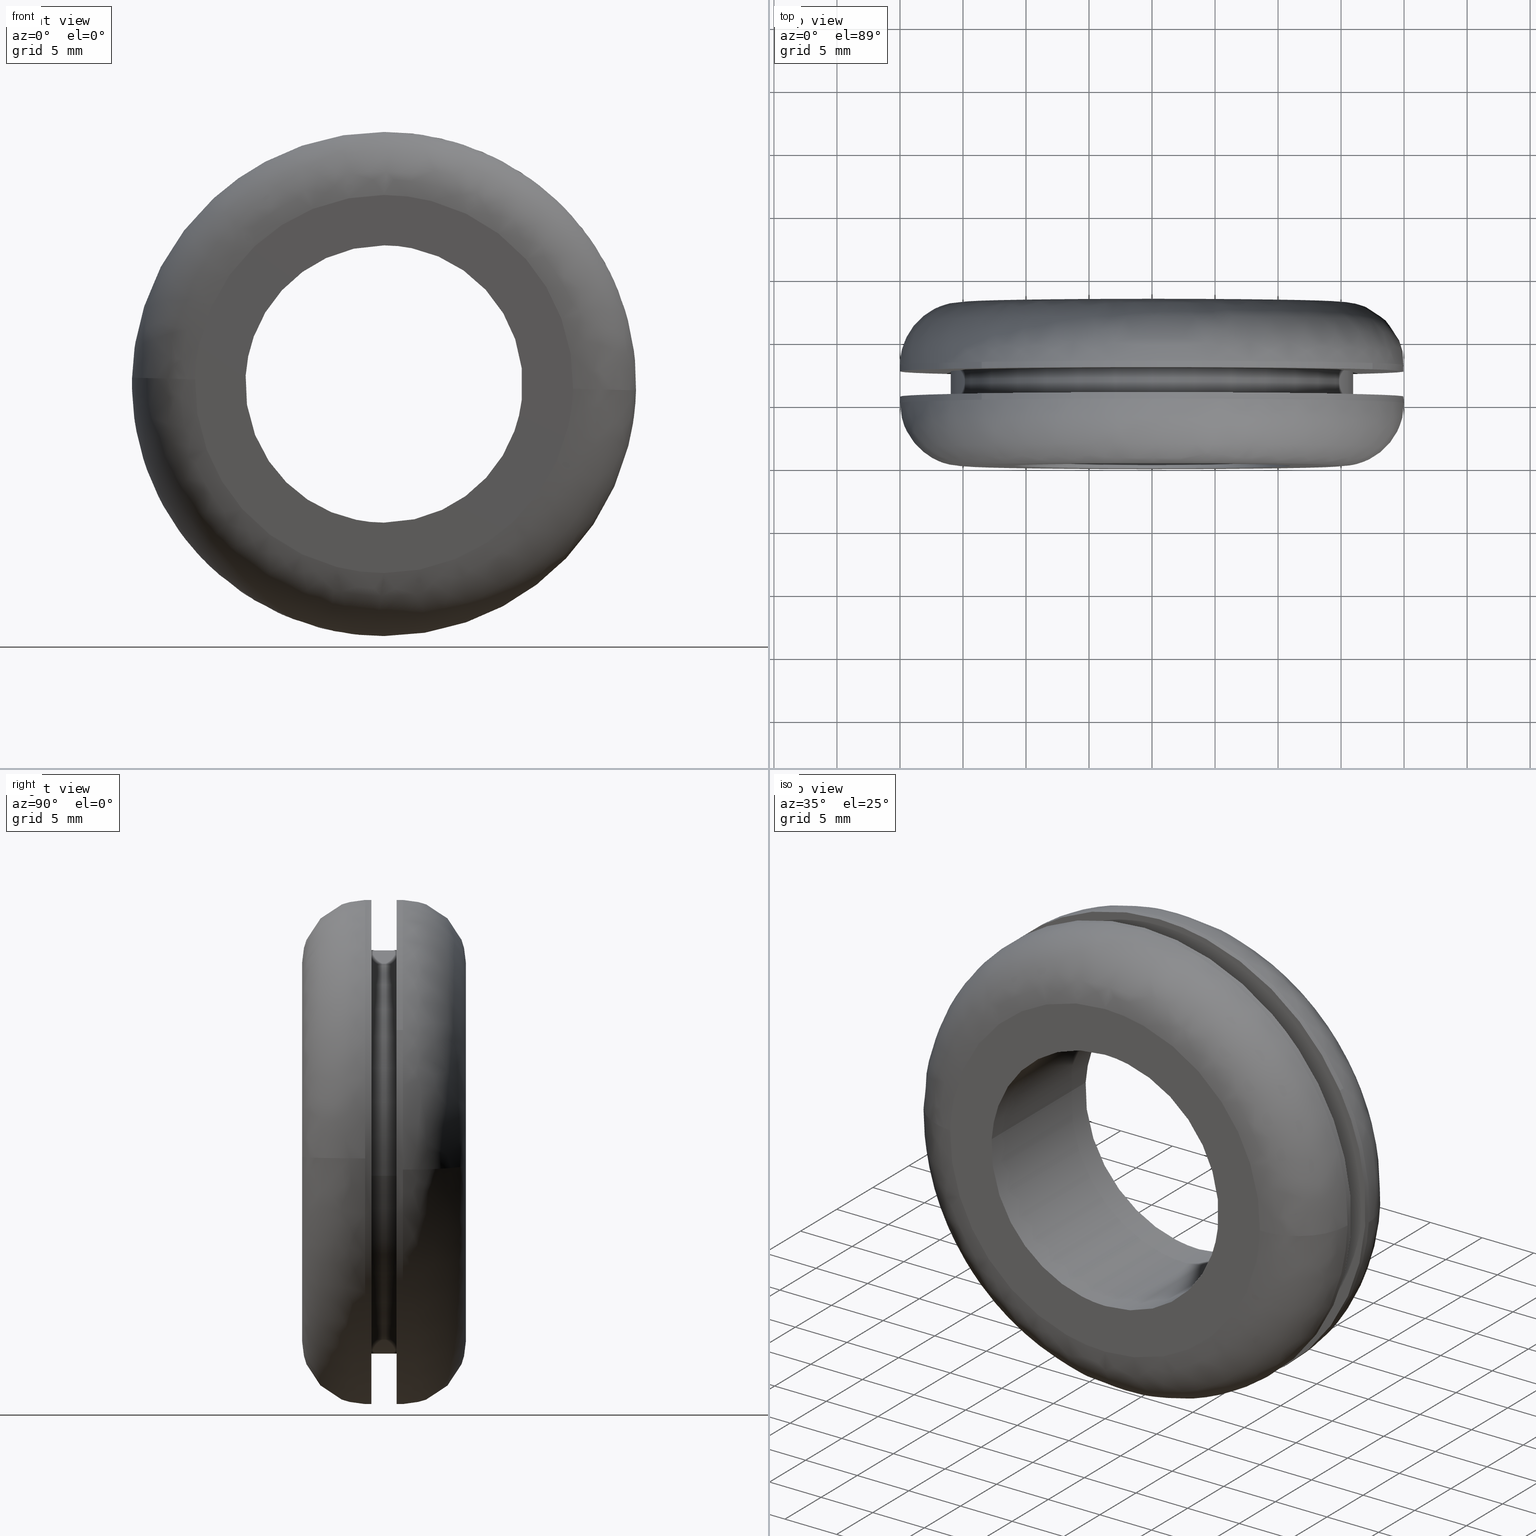
[diagram: canonical four-view strip — front | top / right | iso, engineering-drawing reading convention]
A machine part, canonical four-view strip (front | top / right | iso — engineering-drawing reading convention). The complete STEP part file that produces these views, byte-faithful:
ISO-10303-21;
HEADER;
/****************************************************************
 * Generated by software with PDE/Lib inside                    *
 * PDElib Version 4.4.1-0003, patched  Thursday August 19 11:58 *
 * International Technegroup Inc. (www.iti-oh.com)              *
 ****************************************************************/
FILE_DESCRIPTION((''),'2;1');
FILE_NAME('','2005-12-14T13:39:26',(''),(''),'','CADfix','');
FILE_SCHEMA(('AUTOMOTIVE_DESIGN'));
ENDSEC;
DATA;
#5=APPLICATION_CONTEXT('automotive design');
#6=APPLICATION_PROTOCOL_DEFINITION('Draft International Standard','automotive_design',1998,#5);
#7=PRODUCT_CONTEXT('None',#5,'mechanical');
#8=PRODUCT('grommet','','None',(#7));
#9=PRODUCT_RELATED_PRODUCT_CATEGORY('part','description',(#8));
#10=PRODUCT_DEFINITION_FORMATION('None','None',#8);
#11=PRODUCT_DEFINITION_CONTEXT('part definition',#5,'design');
#12=PRODUCT_DEFINITION('None','None',#10,#11);
#18=(NAMED_UNIT(*)PLANE_ANGLE_UNIT()SI_UNIT($,.RADIAN.));
#19=DIMENSIONAL_EXPONENTS(0.0,0.0,0.0,0.0,0.0,0.0,0.0);
#20=PLANE_ANGLE_MEASURE_WITH_UNIT(PLANE_ANGLE_MEASURE(0.017453292500000),#18);
#24=(CONVERSION_BASED_UNIT('DEGREE',#20)NAMED_UNIT(#19)PLANE_ANGLE_UNIT());
#28=(NAMED_UNIT(*)SI_UNIT($,.STERADIAN.)SOLID_ANGLE_UNIT());
#32=(LENGTH_UNIT()NAMED_UNIT(*)SI_UNIT(.MILLI.,.METRE.));
#34=UNCERTAINTY_MEASURE_WITH_UNIT(LENGTH_MEASURE(0.001000000000000),#32,'DISTANCE_ACCURACY_VALUE','');
#36=(GEOMETRIC_REPRESENTATION_CONTEXT(3)GLOBAL_UNCERTAINTY_ASSIGNED_CONTEXT((#34))GLOBAL_UNIT_ASSIGNED_CONTEXT((#24,#28,#32))REPRESENTATION_CONTEXT('None','None'));
#37=AXIS2_PLACEMENT_3D('',#38,#39,#40);
#38=CARTESIAN_POINT('',(0.0,0.0,0.0));
#39=DIRECTION('',(0.0,0.0,1.0));
#40=DIRECTION('',(1.0,0.0,0.0));
#41=ADVANCED_BREP_SHAPE_REPRESENTATION('',(#37,#1235),#36);
#42=PRODUCT_DEFINITION_SHAPE('','',#12);
#43=SHAPE_DEFINITION_REPRESENTATION(#42,#41);
#44=CARTESIAN_POINT('',(-13.086793140054096,5.512500000000799,-15.124015515379268));
#45=CARTESIAN_POINT('',(0.381017159569075,5.512500000000799,-26.777696197036420));
#46=CARTESIAN_POINT('',(13.511804152313200,5.512500000000799,-14.745546736202471));
#47=CARTESIAN_POINT('',(28.257350888515678,5.512500000000799,-1.233742583889272));
#48=CARTESIAN_POINT('',(14.745546736202471,5.512500000000799,13.511804152313200));
#49=CARTESIAN_POINT('',(1.233742583889272,5.512500000000799,28.257350888515678));
#50=CARTESIAN_POINT('',(-13.511804152313200,5.512500000000799,14.745546736202471));
#51=CARTESIAN_POINT('',(-13.086793140054096,4.987187499963049,-15.124015515379268));
#52=CARTESIAN_POINT('',(0.381017159569075,4.987187499963050,-26.777696197036420));
#53=CARTESIAN_POINT('',(13.511804152313200,4.987187499963049,-14.745546736202471));
#54=CARTESIAN_POINT('',(28.257350888515678,4.987187499963049,-1.233742583889272));
#55=CARTESIAN_POINT('',(14.745546736202471,4.987187499963049,13.511804152313200));
#56=CARTESIAN_POINT('',(1.233742583889272,4.987187499963049,28.257350888515678));
#57=CARTESIAN_POINT('',(-13.511804152313200,4.987187499963049,14.745546736202471));
#65=(BOUNDED_SURFACE()B_SPLINE_SURFACE(2,1,((#44,#51),(#45,#52),(#46,#53),(#47,#54),(#48,#55),(#49,#56),(#50,#57)),.UNSPECIFIED.,.F.,.F.,.U.)B_SPLINE_SURFACE_WITH_KNOTS((3,2,2,3),(2,2),(0.0,30.486118190659781,63.623203180507367,96.760288170354954),(0.0,1.0),.UNSPECIFIED.)GEOMETRIC_REPRESENTATION_ITEM()RATIONAL_B_SPLINE_SURFACE(((0.956886118190660,0.956886118190660),(0.730538238691624,0.730538238691624),(1.0,1.0),(0.707106781186548,0.707106781186548),(1.0,1.0),(0.707106781186548,0.707106781186548),(1.0,1.0)))REPRESENTATION_ITEM('')SURFACE());
#66=CARTESIAN_POINT('',(-13.086792479413640,5.500000000000005,-15.124016087030650));
#67=VERTEX_POINT('',#66);
#68=CARTESIAN_POINT('',(0.0,5.499999999999900,-20.0));
#69=VERTEX_POINT('',#68);
#70=CARTESIAN_POINT('',(-13.086792479413633,5.500000000000006,-15.124016087030647));
#71=CARTESIAN_POINT('',(-7.451762676201992,5.499999999999901,-19.999999999999996));
#72=CARTESIAN_POINT('',(0.0,5.499999999999900,-20.0));
#80=(BOUNDED_CURVE()B_SPLINE_CURVE(2,(#70,#71,#72),.UNSPECIFIED.,.F.,.U.)B_SPLINE_CURVE_WITH_KNOTS((3,3),(0.885882133147832,1.0),.UNSPECIFIED.)CURVE()GEOMETRIC_REPRESENTATION_ITEM()RATIONAL_B_SPLINE_CURVE((0.854663299575205,0.866302602614174,1.0))REPRESENTATION_ITEM(''));
#81=EDGE_CURVE('',#67,#69,#80,.T.);
#82=ORIENTED_EDGE('',*,*,#81,.T.);
#83=CARTESIAN_POINT('',(0.0,5.499999999999900,20.0));
#84=VERTEX_POINT('',#83);
#85=CARTESIAN_POINT('',(0.0,5.499999999999900,-20.0));
#86=CARTESIAN_POINT('',(19.999999999999996,5.499999999999901,-19.999999999999996));
#87=CARTESIAN_POINT('',(20.0,5.499999999999900,-3.673819E-016));
#88=CARTESIAN_POINT('',(19.999999999999996,5.499999999999901,19.999999999999996));
#89=CARTESIAN_POINT('',(0.0,5.499999999999900,20.0));
#97=(BOUNDED_CURVE()B_SPLINE_CURVE(2,(#85,#86,#87,#88,#89),.UNSPECIFIED.,.F.,.U.)B_SPLINE_CURVE_WITH_KNOTS((3,2,3),(0.0,0.250000000000000,0.500000000000000),.UNSPECIFIED.)CURVE()GEOMETRIC_REPRESENTATION_ITEM()RATIONAL_B_SPLINE_CURVE((1.0,0.707106781186548,1.0,0.707106781186548,1.0))REPRESENTATION_ITEM(''));
#98=EDGE_CURVE('',#69,#84,#97,.T.);
#99=ORIENTED_EDGE('',*,*,#98,.T.);
#100=CARTESIAN_POINT('',(-13.511803360147260,5.499999999999901,14.745547462088750));
#101=VERTEX_POINT('',#100);
#102=CARTESIAN_POINT('',(0.0,5.499999999999900,20.0));
#103=CARTESIAN_POINT('',(-7.777574018593410,5.499999999999900,20.000000000000004));
#104=CARTESIAN_POINT('',(-13.511803360147285,5.499999999999900,14.745547462088767));
#112=(BOUNDED_CURVE()B_SPLINE_CURVE(2,(#102,#103,#104),.UNSPECIFIED.,.F.,.U.)B_SPLINE_CURVE_WITH_KNOTS((3,3),(0.500000000000000,0.618415200974131),.UNSPECIFIED.)CURVE()GEOMETRIC_REPRESENTATION_ITEM()RATIONAL_B_SPLINE_CURVE((1.0,0.861267962520980,0.853959781838990))REPRESENTATION_ITEM(''));
#113=EDGE_CURVE('',#84,#101,#112,.T.);
#114=ORIENTED_EDGE('',*,*,#113,.T.);
#115=CARTESIAN_POINT('',(-13.511803324051590,4.999999999990425,14.745547495163640));
#116=VERTEX_POINT('',#115);
#117=CARTESIAN_POINT('',(-13.511803360147260,5.499999999999901,14.745547462088750));
#118=CARTESIAN_POINT('',(-13.511803324051590,4.999999999990425,14.745547495163640));
#119=QUASI_UNIFORM_CURVE('',1,(#117,#118),.UNSPECIFIED.,.F.,.U.);
#120=EDGE_CURVE('',#101,#116,#119,.T.);
#121=ORIENTED_EDGE('',*,*,#120,.T.);
#122=CARTESIAN_POINT('',(0.0,5.0,20.0));
#123=VERTEX_POINT('',#122);
#124=CARTESIAN_POINT('',(0.0,5.0,20.0));
#125=CARTESIAN_POINT('',(-7.777573990412198,5.0,20.000000000000004));
#126=CARTESIAN_POINT('',(-13.511803324051590,4.999999999990425,14.745547495163644));
#134=(BOUNDED_CURVE()B_SPLINE_CURVE(2,(#124,#125,#126),.UNSPECIFIED.,.F.,.U.)B_SPLINE_CURVE_WITH_KNOTS((3,3),(0.500000000000000,0.618415200604591),.UNSPECIFIED.)CURVE()GEOMETRIC_REPRESENTATION_ITEM()RATIONAL_B_SPLINE_CURVE((1.0,0.861267962953923,0.853959781884604))REPRESENTATION_ITEM(''));
#135=EDGE_CURVE('',#123,#116,#134,.T.);
#136=ORIENTED_EDGE('',*,*,#135,.F.);
#137=CARTESIAN_POINT('',(19.993683785665869,4.999999999963970,-0.502601908872003));
#138=VERTEX_POINT('',#137);
#139=CARTESIAN_POINT('',(19.993683785665869,4.999999999963970,-0.502601908872003));
#140=CARTESIAN_POINT('',(19.999999999999996,5.0,-0.251340642472849));
#141=CARTESIAN_POINT('',(20.0,5.0,-3.673819E-016));
#142=CARTESIAN_POINT('',(19.999999999999996,5.000000000000001,19.999999999999996));
#143=CARTESIAN_POINT('',(0.0,5.0,20.0));
#151=(BOUNDED_CURVE()B_SPLINE_CURVE(2,(#139,#140,#141,#142,#143),.UNSPECIFIED.,.F.,.U.)B_SPLINE_CURVE_WITH_KNOTS((3,2,3),(0.245579891769716,0.250000000000000,0.500000000000000),.UNSPECIFIED.)CURVE()GEOMETRIC_REPRESENTATION_ITEM()RATIONAL_B_SPLINE_CURVE((0.989826157681368,0.994821521091713,1.0,0.707106781186548,1.0))REPRESENTATION_ITEM(''));
#152=EDGE_CURVE('',#138,#123,#151,.T.);
#153=ORIENTED_EDGE('',*,*,#152,.F.);
#154=CARTESIAN_POINT('',(0.0,5.0,-20.0));
#155=VERTEX_POINT('',#154);
#156=CARTESIAN_POINT('',(0.0,5.0,-20.0));
#157=CARTESIAN_POINT('',(19.503557523602723,5.0,-20.0));
#158=CARTESIAN_POINT('',(19.993683785665869,4.999999999963970,-0.502601908872003));
#166=(BOUNDED_CURVE()B_SPLINE_CURVE(2,(#156,#157,#158),.UNSPECIFIED.,.F.,.U.)B_SPLINE_CURVE_WITH_KNOTS((3,3),(0.0,0.245579891769716),.UNSPECIFIED.)CURVE()GEOMETRIC_REPRESENTATION_ITEM()RATIONAL_B_SPLINE_CURVE((1.0,0.712285260094835,0.989826157681368))REPRESENTATION_ITEM(''));
#167=EDGE_CURVE('',#155,#138,#166,.T.);
#168=ORIENTED_EDGE('',*,*,#167,.F.);
#169=CARTESIAN_POINT('',(-13.086792487373920,5.0,-15.124016080142621));
#170=VERTEX_POINT('',#169);
#171=CARTESIAN_POINT('',(-13.086792487373925,5.000000000000001,-15.124016080142617));
#172=CARTESIAN_POINT('',(-7.451762688190008,5.0,-20.0));
#173=CARTESIAN_POINT('',(0.0,5.0,-20.0));
#181=(BOUNDED_CURVE()B_SPLINE_CURVE(2,(#171,#172,#173),.UNSPECIFIED.,.F.,.U.)B_SPLINE_CURVE_WITH_KNOTS((3,3),(0.885882132988790,1.0),.UNSPECIFIED.)CURVE()GEOMETRIC_REPRESENTATION_ITEM()RATIONAL_B_SPLINE_CURVE((0.854663299542762,0.866302602427844,1.0))REPRESENTATION_ITEM(''));
#182=EDGE_CURVE('',#170,#155,#181,.T.);
#183=ORIENTED_EDGE('',*,*,#182,.F.);
#184=CARTESIAN_POINT('',(-13.086792479413640,5.500000000000005,-15.124016087030650));
#185=CARTESIAN_POINT('',(-13.086792487373920,5.0,-15.124016080142621));
#186=QUASI_UNIFORM_CURVE('',1,(#184,#185),.UNSPECIFIED.,.F.,.U.);
#187=EDGE_CURVE('',#67,#170,#186,.T.);
#188=ORIENTED_EDGE('',*,*,#187,.F.);
#189=EDGE_LOOP('',(#82,#99,#114,#121,#136,#153,#168,#183,#188));
#190=FACE_OUTER_BOUND('',#189,.T.);
#191=ADVANCED_FACE('',(#190),#65,.T.);
#192=CARTESIAN_POINT('',(-13.511804152313200,5.512500000000799,14.745546736202471));
#193=CARTESIAN_POINT('',(-28.257350888515678,5.512500000000799,1.233742583889272));
#194=CARTESIAN_POINT('',(-14.745546736202471,5.512500000000799,-13.511804152313200));
#195=CARTESIAN_POINT('',(-13.962864278071590,5.512500000000799,-14.365952172509227));
#196=CARTESIAN_POINT('',(-13.086793140054096,5.512500000000799,-15.124015515379268));
#197=CARTESIAN_POINT('',(-13.511804152313200,4.987187499963049,14.745546736202471));
#198=CARTESIAN_POINT('',(-28.257350888515678,4.987187499963049,1.233742583889272));
#199=CARTESIAN_POINT('',(-14.745546736202471,4.987187499963049,-13.511804152313200));
#200=CARTESIAN_POINT('',(-13.962864278071590,4.987187499963048,-14.365952172509227));
#201=CARTESIAN_POINT('',(-13.086793140054096,4.987187499963049,-15.124015515379268));
#209=(BOUNDED_SURFACE()B_SPLINE_SURFACE(2,1,((#192,#197),(#193,#198),(#194,#199),(#195,#200),(#196,#201)),.UNSPECIFIED.,.F.,.F.,.U.)B_SPLINE_SURFACE_WITH_KNOTS((3,2,3),(2,2),(0.0,33.137084989847587,35.788051789035400),(0.0,1.0),.UNSPECIFIED.)GEOMETRIC_REPRESENTATION_ITEM()RATIONAL_B_SPLINE_SURFACE(((1.0,1.0),(0.707106781186548,0.707106781186548),(1.0,1.0),(0.976568542494924,0.976568542494924),(0.956886118190660,0.956886118190660)))REPRESENTATION_ITEM('')SURFACE());
#210=CARTESIAN_POINT('',(-13.511803360147285,5.499999999999900,14.745547462088767));
#211=CARTESIAN_POINT('',(-19.999999999999996,5.499999999999900,8.800211259072007));
#212=CARTESIAN_POINT('',(-20.0,5.499999999999900,-3.673819E-016));
#213=CARTESIAN_POINT('',(-20.0,5.499999999999900,-9.142026668237371));
#214=CARTESIAN_POINT('',(-13.086792479413631,5.500000000000005,-15.124016087030645));
#222=(BOUNDED_CURVE()B_SPLINE_CURVE(2,(#210,#211,#212,#213,#214),.UNSPECIFIED.,.F.,.U.)B_SPLINE_CURVE_WITH_KNOTS((3,2,3),(0.618415200974131,0.750000000000000,0.885882133147832),.UNSPECIFIED.)CURVE()GEOMETRIC_REPRESENTATION_ITEM()RATIONAL_B_SPLINE_CURVE((0.853959781838990,0.845838818665568,1.0,0.840804178572373,0.854663299575205))REPRESENTATION_ITEM(''));
#223=EDGE_CURVE('',#101,#67,#222,.T.);
#224=ORIENTED_EDGE('',*,*,#223,.T.);
#225=ORIENTED_EDGE('',*,*,#187,.T.);
#226=CARTESIAN_POINT('',(-19.993683785665858,4.999999999963972,0.502601908872007));
#227=VERTEX_POINT('',#226);
#228=CARTESIAN_POINT('',(-19.993683785665858,4.999999999963972,0.502601908872007));
#229=CARTESIAN_POINT('',(-19.999999999999996,5.0,0.251340642472851));
#230=CARTESIAN_POINT('',(-20.0,5.0,-3.673819E-016));
#231=CARTESIAN_POINT('',(-20.0,5.0,-9.142026655511200));
#232=CARTESIAN_POINT('',(-13.086792487373922,5.0,-15.124016080142626));
#240=(BOUNDED_CURVE()B_SPLINE_CURVE(2,(#228,#229,#230,#231,#232),.UNSPECIFIED.,.F.,.U.)B_SPLINE_CURVE_WITH_KNOTS((3,2,3),(0.745579891769716,0.750000000000000,0.885882132988790),.UNSPECIFIED.)CURVE()GEOMETRIC_REPRESENTATION_ITEM()RATIONAL_B_SPLINE_CURVE((0.989826157681368,0.994821521091713,1.0,0.840804178758703,0.854663299542762))REPRESENTATION_ITEM(''));
#241=EDGE_CURVE('',#227,#170,#240,.T.);
#242=ORIENTED_EDGE('',*,*,#241,.F.);
#243=CARTESIAN_POINT('',(-13.511803324051590,4.999999999990425,14.745547495163644));
#244=CARTESIAN_POINT('',(-19.780031269101549,4.999999999979677,9.001775470988806));
#245=CARTESIAN_POINT('',(-19.993683785665866,4.999999999963973,0.502601908872007));
#253=(BOUNDED_CURVE()B_SPLINE_CURVE(2,(#243,#244,#245),.UNSPECIFIED.,.F.,.U.)B_SPLINE_CURVE_WITH_KNOTS((3,3),(0.618415200604591,0.745579891769716),.UNSPECIFIED.)CURVE()GEOMETRIC_REPRESENTATION_ITEM()RATIONAL_B_SPLINE_CURVE((0.853959781884604,0.846111612190900,0.989826157681369))REPRESENTATION_ITEM(''));
#254=EDGE_CURVE('',#116,#227,#253,.T.);
#255=ORIENTED_EDGE('',*,*,#254,.F.);
#256=ORIENTED_EDGE('',*,*,#120,.F.);
#257=EDGE_LOOP('',(#224,#225,#242,#255,#256));
#258=FACE_OUTER_BOUND('',#257,.T.);
#259=ADVANCED_FACE('',(#258),#209,.T.);
#260=CARTESIAN_POINT('',(15.888152421818658,7.550000000000003,-1.888547754508136));
#261=CARTESIAN_POINT('',(15.942201847177685,7.550000000000003,-1.433835658207643));
#262=CARTESIAN_POINT('',(15.970156774749871,7.550000000000003,-0.976776632557712));
#263=CARTESIAN_POINT('',(16.946933407307572,7.550000000000003,14.993380142192160));
#264=CARTESIAN_POINT('',(0.976776632557712,7.550000000000003,15.970156774749871));
#265=CARTESIAN_POINT('',(-14.993380142192160,7.550000000000003,16.946933407307572));
#266=CARTESIAN_POINT('',(-15.970156774749871,7.550000000000003,0.976776632557711));
#267=CARTESIAN_POINT('',(15.888152421818658,5.448749999999897,-1.888547754508136));
#268=CARTESIAN_POINT('',(15.942201847177685,5.448749999999897,-1.433835658207643));
#269=CARTESIAN_POINT('',(15.970156774749871,5.448749999999896,-0.976776632557712));
#270=CARTESIAN_POINT('',(16.946933407307572,5.448749999999896,14.993380142192160));
#271=CARTESIAN_POINT('',(0.976776632557712,5.448749999999896,15.970156774749871));
#272=CARTESIAN_POINT('',(-14.993380142192160,5.448749999999896,16.946933407307572));
#273=CARTESIAN_POINT('',(-15.970156774749871,5.448749999999896,0.976776632557711));
#281=(BOUNDED_SURFACE()B_SPLINE_SURFACE(2,1,((#260,#267),(#261,#268),(#262,#269),(#263,#270),(#264,#271),(#265,#272),(#266,#273)),.UNSPECIFIED.,.F.,.F.,.U.)B_SPLINE_SURFACE_WITH_KNOTS((3,2,2,3),(2,2),(0.0,1.060386719675124,27.570054711553190,54.079722703431273),(0.0,2.101250000000108),.UNSPECIFIED.)GEOMETRIC_REPRESENTATION_ITEM()RATIONAL_B_SPLINE_SURFACE(((0.977505800795127,0.977505800795127),(0.988284271247462,0.988284271247462),(1.0,1.0),(0.707106781186548,0.707106781186548),(1.0,1.0),(0.707106781186548,0.707106781186548),(1.0,1.0)))REPRESENTATION_ITEM('')SURFACE());
#282=CARTESIAN_POINT('',(15.888154325586020,5.499999999999696,-1.888531738177008));
#283=VERTEX_POINT('',#282);
#284=CARTESIAN_POINT('',(0.0,5.499999999999900,16.0));
#285=VERTEX_POINT('',#284);
#286=CARTESIAN_POINT('',(15.888154325586028,5.499999999999696,-1.888531738177008));
#287=CARTESIAN_POINT('',(15.999999999999998,5.499999999999901,-0.947577821604906));
#288=CARTESIAN_POINT('',(16.0,5.499999999999900,-3.673819E-016));
#289=CARTESIAN_POINT('',(15.999999999999998,5.499999999999901,15.999999999999998));
#290=CARTESIAN_POINT('',(0.0,5.499999999999900,16.0));
#298=(BOUNDED_CURVE()B_SPLINE_CURVE(2,(#286,#287,#288,#289,#290),.UNSPECIFIED.,.F.,.U.)B_SPLINE_CURVE_WITH_KNOTS((3,2,3),(0.229562643882349,0.250000000000000,0.500000000000000),.UNSPECIFIED.)CURVE()GEOMETRIC_REPRESENTATION_ITEM()RATIONAL_B_SPLINE_CURVE((0.956027088113870,0.976056147930657,1.0,0.707106781186548,1.0))REPRESENTATION_ITEM(''));
#299=EDGE_CURVE('',#283,#285,#298,.T.);
#300=ORIENTED_EDGE('',*,*,#299,.F.);
#301=CARTESIAN_POINT('',(15.888154302092399,7.500000000000000,-1.888531935829760));
#302=VERTEX_POINT('',#301);
#303=CARTESIAN_POINT('',(15.888154302092399,7.500000000000000,-1.888531935829760));
#304=CARTESIAN_POINT('',(15.888154325586020,5.499999999999696,-1.888531738177008));
#305=QUASI_UNIFORM_CURVE('',1,(#303,#304),.UNSPECIFIED.,.F.,.U.);
#306=EDGE_CURVE('',#302,#283,#305,.T.);
#307=ORIENTED_EDGE('',*,*,#306,.F.);
#308=CARTESIAN_POINT('',(0.0,7.500000000000000,16.0));
#309=VERTEX_POINT('',#308);
#310=CARTESIAN_POINT('',(15.888154302092396,7.500000000000000,-1.888531935829760));
#311=CARTESIAN_POINT('',(16.000000000000004,7.500000000000000,-0.947577921476031));
#312=CARTESIAN_POINT('',(16.0,7.500000000000000,-3.673819E-016));
#313=CARTESIAN_POINT('',(15.999999999999998,7.500000000000000,15.999999999999998));
#314=CARTESIAN_POINT('',(0.0,7.500000000000000,16.0));
#322=(BOUNDED_CURVE()B_SPLINE_CURVE(2,(#310,#311,#312,#313,#314),.UNSPECIFIED.,.F.,.U.)B_SPLINE_CURVE_WITH_KNOTS((3,2,3),(0.229562641779904,0.250000000000000,0.500000000000000),.UNSPECIFIED.)CURVE()GEOMETRIC_REPRESENTATION_ITEM()RATIONAL_B_SPLINE_CURVE((0.956027083992986,0.976056145467490,1.0,0.707106781186548,1.0))REPRESENTATION_ITEM(''));
#323=EDGE_CURVE('',#302,#309,#322,.T.);
#324=ORIENTED_EDGE('',*,*,#323,.T.);
#325=CARTESIAN_POINT('',(-15.970157387610151,7.500000000000000,0.976766612277504));
#326=VERTEX_POINT('',#325);
#327=CARTESIAN_POINT('',(0.0,7.500000000000000,16.0));
#328=CARTESIAN_POINT('',(-15.051306531893854,7.499999999999999,15.999999999999998));
#329=CARTESIAN_POINT('',(-15.970157387610147,7.500000000000001,0.976766612277504));
#337=(BOUNDED_CURVE()B_SPLINE_CURVE(2,(#327,#328,#329),.UNSPECIFIED.,.F.,.U.)B_SPLINE_CURVE_WITH_KNOTS((3,3),(0.500000000000000,0.739333070504357),.UNSPECIFIED.)CURVE()GEOMETRIC_REPRESENTATION_ITEM()RATIONAL_B_SPLINE_CURVE((1.0,0.719603866445888,0.976072273700219))REPRESENTATION_ITEM(''));
#338=EDGE_CURVE('',#309,#326,#337,.T.);
#339=ORIENTED_EDGE('',*,*,#338,.T.);
#340=CARTESIAN_POINT('',(-15.970157395259861,5.500000000000182,0.976766487203239));
#341=VERTEX_POINT('',#340);
#342=CARTESIAN_POINT('',(-15.970157387610151,7.500000000000000,0.976766612277504));
#343=CARTESIAN_POINT('',(-15.970157395259861,5.500000000000182,0.976766487203239));
#344=QUASI_UNIFORM_CURVE('',1,(#342,#343),.UNSPECIFIED.,.F.,.U.);
#345=EDGE_CURVE('',#326,#341,#344,.T.);
#346=ORIENTED_EDGE('',*,*,#345,.T.);
#347=CARTESIAN_POINT('',(0.0,5.499999999999900,16.0));
#348=CARTESIAN_POINT('',(-15.051306649992174,5.499999999999899,16.000000000000007));
#349=CARTESIAN_POINT('',(-15.970157395259864,5.500000000000182,0.976766487203239));
#357=(BOUNDED_CURVE()B_SPLINE_CURVE(2,(#347,#348,#349),.UNSPECIFIED.,.F.,.U.)B_SPLINE_CURVE_WITH_KNOTS((3,3),(0.500000000000000,0.739333071855701),.UNSPECIFIED.)CURVE()GEOMETRIC_REPRESENTATION_ITEM()RATIONAL_B_SPLINE_CURVE((1.0,0.719603864862690,0.976072276596408))REPRESENTATION_ITEM(''));
#358=EDGE_CURVE('',#285,#341,#357,.T.);
#359=ORIENTED_EDGE('',*,*,#358,.F.);
#360=EDGE_LOOP('',(#300,#307,#324,#339,#346,#359));
#361=FACE_OUTER_BOUND('',#360,.T.);
#362=ADVANCED_FACE('',(#361),#281,.T.);
#363=CARTESIAN_POINT('',(-15.970156774749871,7.550000000000003,0.976776632557711));
#364=CARTESIAN_POINT('',(-16.946933407307572,7.550000000000003,-14.993380142192160));
#365=CARTESIAN_POINT('',(-0.976776632557712,7.550000000000003,-15.970156774749871));
#366=CARTESIAN_POINT('',(14.104695853432020,7.550000000000003,-16.892579147720443));
#367=CARTESIAN_POINT('',(15.888152421818658,7.550000000000003,-1.888547754508136));
#368=CARTESIAN_POINT('',(-15.970156774749871,5.448749999999896,0.976776632557711));
#369=CARTESIAN_POINT('',(-16.946933407307572,5.448749999999896,-14.993380142192160));
#370=CARTESIAN_POINT('',(-0.976776632557712,5.448749999999896,-15.970156774749871));
#371=CARTESIAN_POINT('',(14.104695853432020,5.448749999999896,-16.892579147720443));
#372=CARTESIAN_POINT('',(15.888152421818658,5.448749999999897,-1.888547754508136));
#380=(BOUNDED_SURFACE()B_SPLINE_SURFACE(2,1,((#363,#368),(#364,#369),(#365,#370),(#366,#371),(#367,#372)),.UNSPECIFIED.,.F.,.F.,.U.)B_SPLINE_SURFACE_WITH_KNOTS((3,2,3),(2,2),(0.0,26.509667991878072,51.958949264081021),(0.0,2.101250000000109),.UNSPECIFIED.)GEOMETRIC_REPRESENTATION_ITEM()RATIONAL_B_SPLINE_SURFACE(((1.0,1.0),(0.707106781186548,0.707106781186548),(1.0,1.0),(0.718822509939086,0.718822509939086),(0.977505800795127,0.977505800795127)))REPRESENTATION_ITEM('')SURFACE());
#381=CARTESIAN_POINT('',(0.0,5.499999999999900,-16.0));
#382=VERTEX_POINT('',#381);
#383=CARTESIAN_POINT('',(0.0,5.499999999999900,-16.0));
#384=CARTESIAN_POINT('',(14.210806841512083,5.499999999999900,-16.0));
#385=CARTESIAN_POINT('',(15.888154325586028,5.499999999999696,-1.888531738177008));
#393=(BOUNDED_CURVE()B_SPLINE_CURVE(2,(#383,#384,#385),.UNSPECIFIED.,.F.,.U.)B_SPLINE_CURVE_WITH_KNOTS((3,3),(0.0,0.229562643882349),.UNSPECIFIED.)CURVE()GEOMETRIC_REPRESENTATION_ITEM()RATIONAL_B_SPLINE_CURVE((1.0,0.731050633255891,0.956027088113870))REPRESENTATION_ITEM(''));
#394=EDGE_CURVE('',#382,#283,#393,.T.);
#395=ORIENTED_EDGE('',*,*,#394,.F.);
#396=CARTESIAN_POINT('',(-15.970157395259864,5.500000000000182,0.976766487203239));
#397=CARTESIAN_POINT('',(-16.000000000000004,5.499999999999900,0.488839125877142));
#398=CARTESIAN_POINT('',(-16.0,5.499999999999900,-3.673819E-016));
#399=CARTESIAN_POINT('',(-15.999999999999998,5.499999999999901,-15.999999999999998));
#400=CARTESIAN_POINT('',(0.0,5.499999999999900,-16.0));
#408=(BOUNDED_CURVE()B_SPLINE_CURVE(2,(#396,#397,#398,#399,#400),.UNSPECIFIED.,.F.,.U.)B_SPLINE_CURVE_WITH_KNOTS((3,2,3),(0.739333071855701,0.750000000000000,1.0),.UNSPECIFIED.)CURVE()GEOMETRIC_REPRESENTATION_ITEM()RATIONAL_B_SPLINE_CURVE((0.976072276596408,0.987502916323857,1.0,0.707106781186548,1.0))REPRESENTATION_ITEM(''));
#409=EDGE_CURVE('',#341,#382,#408,.T.);
#410=ORIENTED_EDGE('',*,*,#409,.F.);
#411=ORIENTED_EDGE('',*,*,#345,.F.);
#412=CARTESIAN_POINT('',(0.0,7.500000000000000,-16.0));
#413=VERTEX_POINT('',#412);
#414=CARTESIAN_POINT('',(-15.970157387610147,7.500000000000001,0.976766612277504));
#415=CARTESIAN_POINT('',(-16.0,7.500000000000000,0.488839188589614));
#416=CARTESIAN_POINT('',(-16.0,7.500000000000000,-3.673819E-016));
#417=CARTESIAN_POINT('',(-15.999999999999998,7.500000000000000,-15.999999999999998));
#418=CARTESIAN_POINT('',(0.0,7.500000000000000,-16.0));
#426=(BOUNDED_CURVE()B_SPLINE_CURVE(2,(#414,#415,#416,#417,#418),.UNSPECIFIED.,.F.,.U.)B_SPLINE_CURVE_WITH_KNOTS((3,2,3),(0.739333070504357,0.750000000000000,1.0),.UNSPECIFIED.)CURVE()GEOMETRIC_REPRESENTATION_ITEM()RATIONAL_B_SPLINE_CURVE((0.976072273700219,0.987502914740660,1.0,0.707106781186548,1.0))REPRESENTATION_ITEM(''));
#427=EDGE_CURVE('',#326,#413,#426,.T.);
#428=ORIENTED_EDGE('',*,*,#427,.T.);
#429=CARTESIAN_POINT('',(0.0,7.500000000000000,-16.0));
#430=CARTESIAN_POINT('',(14.210806663481497,7.500000000000000,-15.999999999999995));
#431=CARTESIAN_POINT('',(15.888154302092396,7.500000000000000,-1.888531935829760));
#439=(BOUNDED_CURVE()B_SPLINE_CURVE(2,(#429,#430,#431),.UNSPECIFIED.,.F.,.U.)B_SPLINE_CURVE_WITH_KNOTS((3,3),(0.0,0.229562641779904),.UNSPECIFIED.)CURVE()GEOMETRIC_REPRESENTATION_ITEM()RATIONAL_B_SPLINE_CURVE((1.0,0.731050635719058,0.956027083992986))REPRESENTATION_ITEM(''));
#440=EDGE_CURVE('',#413,#302,#439,.T.);
#441=ORIENTED_EDGE('',*,*,#440,.T.);
#442=ORIENTED_EDGE('',*,*,#306,.T.);
#443=EDGE_LOOP('',(#395,#410,#411,#428,#441,#442));
#444=FACE_OUTER_BOUND('',#443,.T.);
#445=ADVANCED_FACE('',(#444),#380,.T.);
#446=CARTESIAN_POINT('',(17.498928548862601,8.012500000048497,9.684394645087584));
#447=CARTESIAN_POINT('',(16.349393820552063,8.012500000048497,11.761512194747326));
#448=CARTESIAN_POINT('',(14.745546736202471,8.012500000048497,13.511804152313200));
#449=CARTESIAN_POINT('',(1.233742583889272,8.012500000048497,28.257350888515678));
#450=CARTESIAN_POINT('',(-13.511804152313200,8.012500000048497,14.745546736202471));
#451=CARTESIAN_POINT('',(17.498928548862601,7.487187499998787,9.684394645087584));
#452=CARTESIAN_POINT('',(16.349393820552063,7.487187499998787,11.761512194747326));
#453=CARTESIAN_POINT('',(14.745546736202471,7.487187499998787,13.511804152313200));
#454=CARTESIAN_POINT('',(1.233742583889272,7.487187499998789,28.257350888515678));
#455=CARTESIAN_POINT('',(-13.511804152313200,7.487187499998787,14.745546736202471));
#463=(BOUNDED_SURFACE()B_SPLINE_SURFACE(2,1,((#446,#451),(#447,#452),(#448,#453),(#449,#454),(#450,#455)),.UNSPECIFIED.,.F.,.F.,.U.)B_SPLINE_SURFACE_WITH_KNOTS((3,2,3),(2,2),(0.0,5.301933598375622,38.439018588223213),(0.0,1.0),.UNSPECIFIED.)GEOMETRIC_REPRESENTATION_ITEM()RATIONAL_B_SPLINE_SURFACE(((0.921270302782944,0.921270302782944),(0.953137084989848,0.953137084989848),(1.0,1.0),(0.707106781186548,0.707106781186548),(1.0,1.0)))REPRESENTATION_ITEM('')SURFACE());
#464=CARTESIAN_POINT('',(17.498930339779282,8.000000000000441,9.684391409042613));
#465=VERTEX_POINT('',#464);
#466=CARTESIAN_POINT('',(0.0,8.0,20.0));
#467=VERTEX_POINT('',#466);
#468=CARTESIAN_POINT('',(17.498930339779282,8.000000000000441,9.684391409042613));
#469=CARTESIAN_POINT('',(11.789987605707738,8.000000000000002,20.0));
#470=CARTESIAN_POINT('',(0.0,8.0,20.0));
#478=(BOUNDED_CURVE()B_SPLINE_CURVE(2,(#468,#469,#470),.UNSPECIFIED.,.F.,.U.)B_SPLINE_CURVE_WITH_KNOTS((3,3),(0.332484260513294,0.500000000000000),.UNSPECIFIED.)CURVE()GEOMETRIC_REPRESENTATION_ITEM()RATIONAL_B_SPLINE_CURVE((0.870495160132448,0.803743103439292,1.0))REPRESENTATION_ITEM(''));
#479=EDGE_CURVE('',#465,#467,#478,.T.);
#480=ORIENTED_EDGE('',*,*,#479,.T.);
#481=CARTESIAN_POINT('',(-13.511803338491800,8.000000000012431,14.745547481930860));
#482=VERTEX_POINT('',#481);
#483=CARTESIAN_POINT('',(0.0,8.0,20.0));
#484=CARTESIAN_POINT('',(-7.777574001685777,8.000000000000002,20.000000000000007));
#485=CARTESIAN_POINT('',(-13.511803338491793,8.000000000012431,14.745547481930860));
#493=(BOUNDED_CURVE()B_SPLINE_CURVE(2,(#483,#484,#485),.UNSPECIFIED.,.F.,.U.)B_SPLINE_CURVE_WITH_KNOTS((3,3),(0.500000000000000,0.618415200752421),.UNSPECIFIED.)CURVE()GEOMETRIC_REPRESENTATION_ITEM()RATIONAL_B_SPLINE_CURVE((1.0,0.861267962780729,0.853959781866357))REPRESENTATION_ITEM(''));
#494=EDGE_CURVE('',#467,#482,#493,.T.);
#495=ORIENTED_EDGE('',*,*,#494,.T.);
#496=CARTESIAN_POINT('',(-13.511803360147260,7.500000000000000,14.745547462088750));
#497=VERTEX_POINT('',#496);
#498=CARTESIAN_POINT('',(-13.511803338491800,8.000000000012431,14.745547481930860));
#499=CARTESIAN_POINT('',(-13.511803360147260,7.500000000000000,14.745547462088750));
#500=QUASI_UNIFORM_CURVE('',1,(#498,#499),.UNSPECIFIED.,.F.,.U.);
#501=EDGE_CURVE('',#482,#497,#500,.T.);
#502=ORIENTED_EDGE('',*,*,#501,.T.);
#503=CARTESIAN_POINT('',(0.0,7.500000000000000,20.0));
#504=VERTEX_POINT('',#503);
#505=CARTESIAN_POINT('',(0.0,7.500000000000000,20.0));
#506=CARTESIAN_POINT('',(-7.777574018593410,7.500000000000001,20.000000000000004));
#507=CARTESIAN_POINT('',(-13.511803360147285,7.500000000000000,14.745547462088767));
#515=(BOUNDED_CURVE()B_SPLINE_CURVE(2,(#505,#506,#507),.UNSPECIFIED.,.F.,.U.)B_SPLINE_CURVE_WITH_KNOTS((3,3),(0.500000000000000,0.618415200974131),.UNSPECIFIED.)CURVE()GEOMETRIC_REPRESENTATION_ITEM()RATIONAL_B_SPLINE_CURVE((1.0,0.861267962520980,0.853959781838990))REPRESENTATION_ITEM(''));
#516=EDGE_CURVE('',#504,#497,#515,.T.);
#517=ORIENTED_EDGE('',*,*,#516,.F.);
#518=CARTESIAN_POINT('',(17.498930198660631,7.500000000000000,9.684391664032969));
#519=VERTEX_POINT('',#518);
#520=CARTESIAN_POINT('',(17.498930198660638,7.500000000000000,9.684391664032969));
#521=CARTESIAN_POINT('',(11.789987409351792,7.500000000000001,20.0));
#522=CARTESIAN_POINT('',(0.0,7.500000000000000,20.0));
#530=(BOUNDED_CURVE()B_SPLINE_CURVE(2,(#520,#521,#522),.UNSPECIFIED.,.F.,.U.)B_SPLINE_CURVE_WITH_KNOTS((3,3),(0.332484262755645,0.500000000000000),.UNSPECIFIED.)CURVE()GEOMETRIC_REPRESENTATION_ITEM()RATIONAL_B_SPLINE_CURVE((0.870495158345374,0.803743106066369,1.0))REPRESENTATION_ITEM(''));
#531=EDGE_CURVE('',#519,#504,#530,.T.);
#532=ORIENTED_EDGE('',*,*,#531,.F.);
#533=CARTESIAN_POINT('',(17.498930339779282,8.000000000000441,9.684391409042613));
#534=CARTESIAN_POINT('',(17.498930198660631,7.500000000000000,9.684391664032969));
#535=QUASI_UNIFORM_CURVE('',1,(#533,#534),.UNSPECIFIED.,.F.,.U.);
#536=EDGE_CURVE('',#465,#519,#535,.T.);
#537=ORIENTED_EDGE('',*,*,#536,.F.);
#538=EDGE_LOOP('',(#480,#495,#502,#517,#532,#537));
#539=FACE_OUTER_BOUND('',#538,.T.);
#540=ADVANCED_FACE('',(#539),#463,.T.);
#541=CARTESIAN_POINT('',(-13.511804152313200,8.012500000048497,14.745546736202471));
#542=CARTESIAN_POINT('',(-28.257350888515678,8.012500000048497,1.233742583889272));
#543=CARTESIAN_POINT('',(-14.745546736202471,8.012500000048497,-13.511804152313200));
#544=CARTESIAN_POINT('',(-1.233742583889272,8.012500000048497,-28.257350888515678));
#545=CARTESIAN_POINT('',(13.511804152313200,8.012500000048497,-14.745546736202471));
#546=CARTESIAN_POINT('',(25.128196640415894,8.012500000048497,-4.101084169732146));
#547=CARTESIAN_POINT('',(17.498928548862601,8.012500000048497,9.684394645087584));
#548=CARTESIAN_POINT('',(-13.511804152313200,7.487187499998787,14.745546736202471));
#549=CARTESIAN_POINT('',(-28.257350888515678,7.487187499998789,1.233742583889272));
#550=CARTESIAN_POINT('',(-14.745546736202471,7.487187499998787,-13.511804152313200));
#551=CARTESIAN_POINT('',(-1.233742583889272,7.487187499998789,-28.257350888515678));
#552=CARTESIAN_POINT('',(13.511804152313200,7.487187499998787,-14.745546736202471));
#553=CARTESIAN_POINT('',(25.128196640415894,7.487187499998787,-4.101084169732146));
#554=CARTESIAN_POINT('',(17.498928548862601,7.487187499998787,9.684394645087584));
#562=(BOUNDED_SURFACE()B_SPLINE_SURFACE(2,1,((#541,#548),(#542,#549),(#543,#550),(#544,#551),(#545,#552),(#546,#553),(#547,#554)),.UNSPECIFIED.,.F.,.F.,.U.)B_SPLINE_SURFACE_WITH_KNOTS((3,2,2,3),(2,2),(0.0,33.137084989847587,66.274169979695188,94.109321371167155),(0.0,1.0),.UNSPECIFIED.)GEOMETRIC_REPRESENTATION_ITEM()RATIONAL_B_SPLINE_SURFACE(((1.0,1.0),(0.707106781186548,0.707106781186548),(1.0,1.0),(0.707106781186548,0.707106781186548),(1.0,1.0),(0.753969696196700,0.753969696196700),(0.921270302782944,0.921270302782944)))REPRESENTATION_ITEM('')SURFACE());
#563=CARTESIAN_POINT('',(19.951313476808409,8.000000000047315,-1.394665031512212));
#564=VERTEX_POINT('',#563);
#565=CARTESIAN_POINT('',(19.951313476808412,8.000000000047315,-1.394665031512212));
#566=CARTESIAN_POINT('',(20.000000000000004,8.0,-0.698182317497621));
#567=CARTESIAN_POINT('',(20.0,8.0,-3.673819E-016));
#568=CARTESIAN_POINT('',(20.0,8.0,5.165156083809353));
#569=CARTESIAN_POINT('',(17.498930339779282,8.000000000000441,9.684391409042613));
#577=(BOUNDED_CURVE()B_SPLINE_CURVE(2,(#565,#566,#567,#568,#569),.UNSPECIFIED.,.F.,.U.)B_SPLINE_CURVE_WITH_KNOTS((3,2,3),(0.237833686535076,0.250000000000000,0.332484260513294),.UNSPECIFIED.)CURVE()GEOMETRIC_REPRESENTATION_ITEM()RATIONAL_B_SPLINE_CURVE((0.972879876386944,0.985746277152660,1.0,0.903363677747256,0.870495160132448))REPRESENTATION_ITEM(''));
#578=EDGE_CURVE('',#564,#465,#577,.T.);
#579=ORIENTED_EDGE('',*,*,#578,.T.);
#580=ORIENTED_EDGE('',*,*,#536,.T.);
#581=CARTESIAN_POINT('',(0.0,7.500000000000000,-20.0));
#582=VERTEX_POINT('',#581);
#583=CARTESIAN_POINT('',(0.0,7.500000000000000,-20.0));
#584=CARTESIAN_POINT('',(19.999999999999996,7.500000000000000,-19.999999999999996));
#585=CARTESIAN_POINT('',(20.0,7.500000000000000,-3.673819E-016));
#586=CARTESIAN_POINT('',(20.0,7.500000000000000,5.165156239245968));
#587=CARTESIAN_POINT('',(17.498930198660638,7.500000000000000,9.684391664032969));
#595=(BOUNDED_CURVE()B_SPLINE_CURVE(2,(#583,#584,#585,#586,#587),.UNSPECIFIED.,.F.,.U.)B_SPLINE_CURVE_WITH_KNOTS((3,2,3),(0.0,0.250000000000000,0.332484262755645),.UNSPECIFIED.)CURVE()GEOMETRIC_REPRESENTATION_ITEM()RATIONAL_B_SPLINE_CURVE((1.0,0.707106781186548,1.0,0.903363675120178,0.870495158345374))REPRESENTATION_ITEM(''));
#596=EDGE_CURVE('',#582,#519,#595,.T.);
#597=ORIENTED_EDGE('',*,*,#596,.F.);
#598=CARTESIAN_POINT('',(-13.511803360147285,7.500000000000000,14.745547462088767));
#599=CARTESIAN_POINT('',(-19.999999999999996,7.499999999999999,8.800211259072007));
#600=CARTESIAN_POINT('',(-20.0,7.500000000000000,-3.673819E-016));
#601=CARTESIAN_POINT('',(-19.999999999999996,7.500000000000000,-19.999999999999996));
#602=CARTESIAN_POINT('',(0.0,7.500000000000000,-20.0));
#610=(BOUNDED_CURVE()B_SPLINE_CURVE(2,(#598,#599,#600,#601,#602),.UNSPECIFIED.,.F.,.U.)B_SPLINE_CURVE_WITH_KNOTS((3,2,3),(0.618415200974131,0.750000000000000,1.0),.UNSPECIFIED.)CURVE()GEOMETRIC_REPRESENTATION_ITEM()RATIONAL_B_SPLINE_CURVE((0.853959781838990,0.845838818665568,1.0,0.707106781186548,1.0))REPRESENTATION_ITEM(''));
#611=EDGE_CURVE('',#497,#582,#610,.T.);
#612=ORIENTED_EDGE('',*,*,#611,.F.);
#613=ORIENTED_EDGE('',*,*,#501,.F.);
#614=CARTESIAN_POINT('',(-19.998420884076179,8.000000000047249,0.251320797678057));
#615=VERTEX_POINT('',#614);
#616=CARTESIAN_POINT('',(-13.511803338491793,8.000000000012431,14.745547481930860));
#617=CARTESIAN_POINT('',(-19.889716728950877,8.000000000026553,8.901267264633471));
#618=CARTESIAN_POINT('',(-19.998420884076179,8.000000000047249,0.251320797678057));
#626=(BOUNDED_CURVE()B_SPLINE_CURVE(2,(#616,#617,#618),.UNSPECIFIED.,.F.,.U.)B_SPLINE_CURVE_WITH_KNOTS((3,3),(0.618415200752421,0.747784295921534),.UNSPECIFIED.)CURVE()GEOMETRIC_REPRESENTATION_ITEM()RATIONAL_B_SPLINE_CURVE((0.853959781866357,0.845975564078294,0.994854295643565))REPRESENTATION_ITEM(''));
#627=EDGE_CURVE('',#482,#615,#626,.T.);
#628=ORIENTED_EDGE('',*,*,#627,.T.);
#629=CARTESIAN_POINT('',(0.0,8.0,-20.0));
#630=VERTEX_POINT('',#629);
#631=CARTESIAN_POINT('',(-19.998420884076179,8.000000000047249,0.251320797678057));
#632=CARTESIAN_POINT('',(-20.0,8.0,0.125665359848808));
#633=CARTESIAN_POINT('',(-20.0,8.0,-3.673819E-016));
#634=CARTESIAN_POINT('',(-19.999999999999996,8.0,-19.999999999999996));
#635=CARTESIAN_POINT('',(0.0,8.0,-20.0));
#643=(BOUNDED_CURVE()B_SPLINE_CURVE(2,(#631,#632,#633,#634,#635),.UNSPECIFIED.,.F.,.U.)B_SPLINE_CURVE_WITH_KNOTS((3,2,3),(0.747784295921535,0.750000000000000,1.0),.UNSPECIFIED.)CURVE()GEOMETRIC_REPRESENTATION_ITEM()RATIONAL_B_SPLINE_CURVE((0.994854295643567,0.997404141202081,1.0,0.707106781186548,1.0))REPRESENTATION_ITEM(''));
#644=EDGE_CURVE('',#615,#630,#643,.T.);
#645=ORIENTED_EDGE('',*,*,#644,.T.);
#646=CARTESIAN_POINT('',(0.0,8.0,-20.0));
#647=CARTESIAN_POINT('',(18.650736945326056,8.0,-20.000000000000004));
#648=CARTESIAN_POINT('',(19.951313476808416,8.000000000047315,-1.394665031512212));
#656=(BOUNDED_CURVE()B_SPLINE_CURVE(2,(#646,#647,#648),.UNSPECIFIED.,.F.,.U.)B_SPLINE_CURVE_WITH_KNOTS((3,3),(0.0,0.237833686535076),.UNSPECIFIED.)CURVE()GEOMETRIC_REPRESENTATION_ITEM()RATIONAL_B_SPLINE_CURVE((1.0,0.721360504033887,0.972879876386943))REPRESENTATION_ITEM(''));
#657=EDGE_CURVE('',#630,#564,#656,.T.);
#658=ORIENTED_EDGE('',*,*,#657,.T.);
#659=EDGE_LOOP('',(#579,#580,#597,#612,#613,#628,#645,#658));
#660=FACE_OUTER_BOUND('',#659,.T.);
#661=ADVANCED_FACE('',(#660),#562,.T.);
#662=CARTESIAN_POINT('',(10.903838296954532,13.325000000000008,-1.460463548532906));
#663=CARTESIAN_POINT('',(10.913498703531769,13.325000000000001,-1.379191570215436));
#664=CARTESIAN_POINT('',(10.960263769934667,13.325000000000001,-0.985762015017755));
#665=CARTESIAN_POINT('',(10.979482782640540,13.324999999999999,-0.671533934883427));
#666=CARTESIAN_POINT('',(11.651016717523961,13.325000000000001,10.307948847757107));
#667=CARTESIAN_POINT('',(0.671533934883427,13.324999999999999,10.979482782640540));
#668=CARTESIAN_POINT('',(-10.307948847757107,13.325000000000001,11.651016717523961));
#669=CARTESIAN_POINT('',(-10.984312289921441,13.325000000000008,0.592572188819843));
#670=CARTESIAN_POINT('',(-10.989113109207752,13.324999999999994,0.514079487321686));
#671=CARTESIAN_POINT('',(10.903838296954532,-0.333125000000003,-1.460463548532906));
#672=CARTESIAN_POINT('',(10.913498703531769,-0.333125000000003,-1.379191570215436));
#673=CARTESIAN_POINT('',(10.960263769934667,-0.333125000000003,-0.985762015017755));
#674=CARTESIAN_POINT('',(10.979482782640540,-0.333125000000003,-0.671533934883427));
#675=CARTESIAN_POINT('',(11.651016717523961,-0.333125000000003,10.307948847757107));
#676=CARTESIAN_POINT('',(0.671533934883427,-0.333125000000003,10.979482782640540));
#677=CARTESIAN_POINT('',(-10.307948847757107,-0.333125000000003,11.651016717523961));
#678=CARTESIAN_POINT('',(-10.984312289921441,-0.333125000000003,0.592572188819843));
#679=CARTESIAN_POINT('',(-10.989113109207752,-0.333125000000002,0.514079487321686));
#687=(BOUNDED_SURFACE()B_SPLINE_SURFACE(2,1,((#662,#671),(#663,#672),(#664,#673),(#665,#674),(#666,#675),(#667,#676),(#668,#677),(#669,#678),(#670,#679)),.UNSPECIFIED.,.F.,.F.,.U.)B_SPLINE_SURFACE_WITH_KNOTS((3,1,2,2,1,3),(2,2),(0.0,0.185880751571969,0.914896621348617,19.140293365764801,37.365690110180992,37.551608568951487),(0.0,13.658125000000011),.UNSPECIFIED.)GEOMETRIC_REPRESENTATION_ITEM()RATIONAL_B_SPLINE_SURFACE(((0.972009321852658,0.972009321852658),(0.974757561323893,0.974757561323893),(0.988284271247462,0.988284271247462),(1.0,1.0),(0.707106781186548,0.707106781186548),(1.0,1.0),(0.707106781186548,0.707106781186548),(1.002987822794190,1.002987822794190),(1.005975645588381,1.005975645588381)))REPRESENTATION_ITEM('')SURFACE());
#688=CARTESIAN_POINT('',(10.923106698756831,13.000000000000041,-1.298360522856434));
#689=VERTEX_POINT('',#688);
#690=CARTESIAN_POINT('',(0.0,13.0,11.0));
#691=VERTEX_POINT('',#690);
#692=CARTESIAN_POINT('',(10.923106698756833,13.000000000000034,-1.298360522856434));
#693=CARTESIAN_POINT('',(11.000000000000004,13.000000000000004,-0.651457202105320));
#694=CARTESIAN_POINT('',(11.0,13.0,-3.673819E-016));
#695=CARTESIAN_POINT('',(11.0,13.000000000000002,11.0));
#696=CARTESIAN_POINT('',(0.0,13.0,11.0));
#704=(BOUNDED_CURVE()B_SPLINE_CURVE(2,(#692,#693,#694,#695,#696),.UNSPECIFIED.,.F.,.U.)B_SPLINE_CURVE_WITH_KNOTS((3,2,3),(0.229562721972163,0.250000000000000,0.500000000000000),.UNSPECIFIED.)CURVE()GEOMETRIC_REPRESENTATION_ITEM()RATIONAL_B_SPLINE_CURVE((0.956027241173408,0.976056239418565,1.0,0.707106781186548,1.0))REPRESENTATION_ITEM(''));
#705=EDGE_CURVE('',#689,#691,#704,.T.);
#706=ORIENTED_EDGE('',*,*,#705,.F.);
#707=CARTESIAN_POINT('',(10.923106675754809,-2.060889E-015,-1.298360716374869));
#708=VERTEX_POINT('',#707);
#709=CARTESIAN_POINT('',(10.923106698756831,13.000000000000041,-1.298360522856434));
#710=CARTESIAN_POINT('',(10.923106675754809,-2.060889E-015,-1.298360716374869));
#711=QUASI_UNIFORM_CURVE('',1,(#709,#710),.UNSPECIFIED.,.F.,.U.);
#712=EDGE_CURVE('',#689,#708,#711,.T.);
#713=ORIENTED_EDGE('',*,*,#712,.T.);
#714=CARTESIAN_POINT('',(0.0,-2.020600E-015,11.0));
#715=VERTEX_POINT('',#714);
#716=CARTESIAN_POINT('',(10.923106675754811,-2.060889E-015,-1.298360716374870));
#717=CARTESIAN_POINT('',(11.000000000000004,-2.020600E-015,-0.651457299887421));
#718=CARTESIAN_POINT('',(11.0,-2.020600E-015,-3.673819E-016));
#719=CARTESIAN_POINT('',(11.0,-2.020600E-015,11.0));
#720=CARTESIAN_POINT('',(0.0,-2.020600E-015,11.0));
#728=(BOUNDED_CURVE()B_SPLINE_CURVE(2,(#716,#717,#718,#719,#720),.UNSPECIFIED.,.F.,.U.)B_SPLINE_CURVE_WITH_KNOTS((3,2,3),(0.229562718978028,0.250000000000000,0.500000000000000),.UNSPECIFIED.)CURVE()GEOMETRIC_REPRESENTATION_ITEM()RATIONAL_B_SPLINE_CURVE((0.956027235304767,0.976056235910718,1.0,0.707106781186548,1.0))REPRESENTATION_ITEM(''));
#729=EDGE_CURVE('',#708,#715,#728,.T.);
#730=ORIENTED_EDGE('',*,*,#729,.T.);
#731=CARTESIAN_POINT('',(-10.979483781875210,-2.092768E-015,0.671517597141975));
#732=VERTEX_POINT('',#731);
#733=CARTESIAN_POINT('',(0.0,-2.020600E-015,11.0));
#734=CARTESIAN_POINT('',(-10.347782162477955,-2.020600E-015,11.0));
#735=CARTESIAN_POINT('',(-10.979483781875205,-2.092768E-015,0.671517597141975));
#743=(BOUNDED_CURVE()B_SPLINE_CURVE(2,(#733,#734,#735),.UNSPECIFIED.,.F.,.U.)B_SPLINE_CURVE_WITH_KNOTS((3,3),(0.500000000000000,0.739333218995901),.UNSPECIFIED.)CURVE()GEOMETRIC_REPRESENTATION_ITEM()RATIONAL_B_SPLINE_CURVE((1.0,0.719603692477223,0.976072591946372))REPRESENTATION_ITEM(''));
#744=EDGE_CURVE('',#715,#732,#743,.T.);
#745=ORIENTED_EDGE('',*,*,#744,.T.);
#746=CARTESIAN_POINT('',(-10.979483794064830,13.000000000000050,0.671517397833643));
#747=VERTEX_POINT('',#746);
#748=CARTESIAN_POINT('',(-10.979483794064830,13.000000000000050,0.671517397833643));
#749=CARTESIAN_POINT('',(-10.979483781875210,-2.092768E-015,0.671517597141975));
#750=QUASI_UNIFORM_CURVE('',1,(#748,#749),.UNSPECIFIED.,.F.,.U.);
#751=EDGE_CURVE('',#747,#732,#750,.T.);
#752=ORIENTED_EDGE('',*,*,#751,.F.);
#753=CARTESIAN_POINT('',(0.0,13.0,11.0));
#754=CARTESIAN_POINT('',(-10.347782350670126,13.000000000000002,11.000000000000004));
#755=CARTESIAN_POINT('',(-10.979483794064834,13.000000000000043,0.671517397833643));
#763=(BOUNDED_CURVE()B_SPLINE_CURVE(2,(#753,#754,#755),.UNSPECIFIED.,.F.,.U.)B_SPLINE_CURVE_WITH_KNOTS((3,3),(0.500000000000000,0.739333222128109),.UNSPECIFIED.)CURVE()GEOMETRIC_REPRESENTATION_ITEM()RATIONAL_B_SPLINE_CURVE((1.0,0.719603688807613,0.976072598659305))REPRESENTATION_ITEM(''));
#764=EDGE_CURVE('',#691,#747,#763,.T.);
#765=ORIENTED_EDGE('',*,*,#764,.F.);
#766=EDGE_LOOP('',(#706,#713,#730,#745,#752,#765));
#767=FACE_OUTER_BOUND('',#766,.T.);
#768=ADVANCED_FACE('',(#767),#687,.F.);
#769=CARTESIAN_POINT('',(-10.970229909106381,13.324999999999999,0.822817079905325));
#770=CARTESIAN_POINT('',(-10.974843105790240,13.324999999999999,0.747391980841490));
#771=CARTESIAN_POINT('',(-11.651016717523961,13.325000000000001,-10.307948847757109));
#772=CARTESIAN_POINT('',(-0.671533934883427,13.324999999999999,-10.979482782640540));
#773=CARTESIAN_POINT('',(9.696978399234512,13.325000000000003,-11.613648164057802));
#774=CARTESIAN_POINT('',(10.932285275241552,13.325000000000001,-1.221142130323878));
#775=CARTESIAN_POINT('',(10.941416419918962,13.325000000000008,-1.144322776365762));
#776=CARTESIAN_POINT('',(-10.970229909106381,-0.333125000000002,0.822817079905325));
#777=CARTESIAN_POINT('',(-10.974843105790240,-0.333125000000002,0.747391980841490));
#778=CARTESIAN_POINT('',(-11.651016717523961,-0.333125000000003,-10.307948847757109));
#779=CARTESIAN_POINT('',(-0.671533934883427,-0.333125000000003,-10.979482782640540));
#780=CARTESIAN_POINT('',(9.696978399234512,-0.333125000000003,-11.613648164057802));
#781=CARTESIAN_POINT('',(10.932285275241552,-0.333125000000003,-1.221142130323878));
#782=CARTESIAN_POINT('',(10.941416419918962,-0.333125000000003,-1.144322776365762));
#790=(BOUNDED_SURFACE()B_SPLINE_SURFACE(2,1,((#769,#776),(#770,#777),(#771,#778),(#772,#779),(#773,#780),(#774,#781),(#775,#782)),.UNSPECIFIED.,.F.,.F.,.U.)B_SPLINE_SURFACE_WITH_KNOTS((3,1,2,1,3),(2,2),(0.0,0.178589704203703,18.403986448619889,35.900367323259417,36.078994723890460),(0.0,13.658125000000011),.UNSPECIFIED.)GEOMETRIC_REPRESENTATION_ITEM()RATIONAL_B_SPLINE_SURFACE(((1.005740090495116,1.005740090495116),(1.002870045247558,1.002870045247558),(0.707106781186548,0.707106781186548),(1.0,1.0),(0.718822509939086,0.718822509939086),(0.980146799763049,0.980146799763049),(0.982787798730971,0.982787798730971)))REPRESENTATION_ITEM('')SURFACE());
#791=CARTESIAN_POINT('',(0.0,13.0,-11.0));
#792=VERTEX_POINT('',#791);
#793=CARTESIAN_POINT('',(0.0,13.0,-11.0));
#794=CARTESIAN_POINT('',(9.769934249620954,13.000000000000002,-11.0));
#795=CARTESIAN_POINT('',(10.923106698756833,13.000000000000034,-1.298360522856434));
#803=(BOUNDED_CURVE()B_SPLINE_CURVE(2,(#793,#794,#795),.UNSPECIFIED.,.F.,.U.)B_SPLINE_CURVE_WITH_KNOTS((3,3),(0.0,0.229562721972163),.UNSPECIFIED.)CURVE()GEOMETRIC_REPRESENTATION_ITEM()RATIONAL_B_SPLINE_CURVE((1.0,0.731050541767982,0.956027241173408))REPRESENTATION_ITEM(''));
#804=EDGE_CURVE('',#792,#689,#803,.T.);
#805=ORIENTED_EDGE('',*,*,#804,.F.);
#806=CARTESIAN_POINT('',(-10.979483794064834,13.000000000000043,0.671517397833643));
#807=CARTESIAN_POINT('',(-10.999999999999996,12.999999999999996,0.336072104576399));
#808=CARTESIAN_POINT('',(-11.0,13.0,-3.673819E-016));
#809=CARTESIAN_POINT('',(-11.0,13.000000000000002,-11.0));
#810=CARTESIAN_POINT('',(0.0,13.0,-11.0));
#818=(BOUNDED_CURVE()B_SPLINE_CURVE(2,(#806,#807,#808,#809,#810),.UNSPECIFIED.,.F.,.U.)B_SPLINE_CURVE_WITH_KNOTS((3,2,3),(0.739333222128109,0.750000000000000,1.0),.UNSPECIFIED.)CURVE()GEOMETRIC_REPRESENTATION_ITEM()RATIONAL_B_SPLINE_CURVE((0.976072598659305,0.987503092378935,1.0,0.707106781186548,1.0))REPRESENTATION_ITEM(''));
#819=EDGE_CURVE('',#747,#792,#818,.T.);
#820=ORIENTED_EDGE('',*,*,#819,.F.);
#821=ORIENTED_EDGE('',*,*,#751,.T.);
#822=CARTESIAN_POINT('',(0.0,-2.020600E-015,-11.0));
#823=VERTEX_POINT('',#822);
#824=CARTESIAN_POINT('',(-10.979483781875205,-2.092768E-015,0.671517597141975));
#825=CARTESIAN_POINT('',(-11.0,-2.020600E-015,0.336072204509964));
#826=CARTESIAN_POINT('',(-11.0,-2.020600E-015,-3.673819E-016));
#827=CARTESIAN_POINT('',(-11.0,-2.020600E-015,-11.0));
#828=CARTESIAN_POINT('',(0.0,-2.020600E-015,-11.0));
#836=(BOUNDED_CURVE()B_SPLINE_CURVE(2,(#824,#825,#826,#827,#828),.UNSPECIFIED.,.F.,.U.)B_SPLINE_CURVE_WITH_KNOTS((3,2,3),(0.739333218995901,0.750000000000000,1.0),.UNSPECIFIED.)CURVE()GEOMETRIC_REPRESENTATION_ITEM()RATIONAL_B_SPLINE_CURVE((0.976072591946372,0.987503088709325,1.0,0.707106781186548,1.0))REPRESENTATION_ITEM(''));
#837=EDGE_CURVE('',#732,#823,#836,.T.);
#838=ORIENTED_EDGE('',*,*,#837,.T.);
#839=CARTESIAN_POINT('',(0.0,-2.020600E-015,-11.0));
#840=CARTESIAN_POINT('',(9.769934075314190,-2.020600E-015,-11.0));
#841=CARTESIAN_POINT('',(10.923106675754811,-2.060889E-015,-1.298360716374870));
#849=(BOUNDED_CURVE()B_SPLINE_CURVE(2,(#839,#840,#841),.UNSPECIFIED.,.F.,.U.)B_SPLINE_CURVE_WITH_KNOTS((3,3),(0.0,0.229562718978028),.UNSPECIFIED.)CURVE()GEOMETRIC_REPRESENTATION_ITEM()RATIONAL_B_SPLINE_CURVE((1.0,0.731050545275830,0.956027235304767))REPRESENTATION_ITEM(''));
#850=EDGE_CURVE('',#823,#708,#849,.T.);
#851=ORIENTED_EDGE('',*,*,#850,.T.);
#852=ORIENTED_EDGE('',*,*,#712,.F.);
#853=EDGE_LOOP('',(#805,#820,#821,#838,#851,#852));
#854=FACE_OUTER_BOUND('',#853,.T.);
#855=ADVANCED_FACE('',(#854),#790,.F.);
#856=CARTESIAN_POINT('',(-19.981519166674136,5.348620922722298,0.502296114257239));
#857=CARTESIAN_POINT('',(-20.483815280931395,5.348620922722299,-19.479223052416906));
#858=CARTESIAN_POINT('',(-0.502296114257244,5.348620922722298,-19.981519166674136));
#859=CARTESIAN_POINT('',(19.479223052416906,5.348620922722299,-20.483815280931395));
#860=CARTESIAN_POINT('',(19.981519166674136,5.348620922722298,-0.502296114257246));
#861=CARTESIAN_POINT('',(-20.382257219483595,-0.386678407463598,0.512369881175668));
#862=CARTESIAN_POINT('',(-20.894627100659257,-0.386678407463598,-19.869887338307915));
#863=CARTESIAN_POINT('',(-0.512369881175673,-0.386678407463598,-20.382257219483595));
#864=CARTESIAN_POINT('',(19.869887338307915,-0.386678407463598,-20.894627100659257));
#865=CARTESIAN_POINT('',(20.382257219483595,-0.386678407463598,-0.512369881175675));
#866=CARTESIAN_POINT('',(-14.648619477158034,0.012038247250253,0.368237498922565));
#867=CARTESIAN_POINT('',(-15.016856976080604,0.012038247250253,-14.280381978235466));
#868=CARTESIAN_POINT('',(-0.368237498922569,0.012038247250253,-14.648619477158034));
#869=CARTESIAN_POINT('',(14.280381978235466,0.012038247250253,-15.016856976080604));
#870=CARTESIAN_POINT('',(14.648619477158034,0.012038247250253,-0.368237498922570));
#878=(BOUNDED_SURFACE()B_SPLINE_SURFACE(2,2,((#856,#861,#866),(#857,#862,#867),(#858,#863,#868),(#859,#864,#869),(#860,#865,#870)),.UNSPECIFIED.,.F.,.F.,.U.)B_SPLINE_SURFACE_WITH_KNOTS((3,2,3),(3,3),(0.0,33.116923622001451,66.233847244002902),(0.0,9.111851625964388),.UNSPECIFIED.)GEOMETRIC_REPRESENTATION_ITEM()RATIONAL_B_SPLINE_SURFACE(((0.910892941386805,0.599412934105556,0.915966621324616),(0.644098575789570,0.423848950436964,0.647686209279166),(0.910892941386805,0.599412934105556,0.915966621324616),(0.644098575789570,0.423848950436964,0.647686209279166),(0.910892941386805,0.599412934105556,0.915966621324616)))REPRESENTATION_ITEM('')SURFACE());
#879=ORIENTED_EDGE('',*,*,#241,.T.);
#880=ORIENTED_EDGE('',*,*,#182,.T.);
#881=ORIENTED_EDGE('',*,*,#167,.T.);
#882=CARTESIAN_POINT('',(14.995262839473099,-3.951179E-016,-0.376951431683386));
#883=VERTEX_POINT('',#882);
#884=CARTESIAN_POINT('',(19.993683785665866,4.999999999963970,-0.502601908872003));
#885=CARTESIAN_POINT('',(19.993683785593962,4.487558E-010,-0.502601908864937));
#886=CARTESIAN_POINT('',(14.995262839473099,-3.951179E-016,-0.376951431683386));
#894=(BOUNDED_CURVE()B_SPLINE_CURVE(2,(#884,#885,#886),.UNSPECIFIED.,.F.,.U.)B_SPLINE_CURVE_WITH_KNOTS((3,3),(-1.723441281969931,-0.263586879020719),.UNSPECIFIED.)CURVE()GEOMETRIC_REPRESENTATION_ITEM()RATIONAL_B_SPLINE_CURVE((0.883897567133435,0.626638727256570,0.888510409029225))REPRESENTATION_ITEM(''));
#895=EDGE_CURVE('',#138,#883,#894,.T.);
#896=ORIENTED_EDGE('',*,*,#895,.T.);
#897=CARTESIAN_POINT('',(0.0,-2.664535E-015,-15.0));
#898=VERTEX_POINT('',#897);
#899=CARTESIAN_POINT('',(0.0,-2.664535E-015,-15.0));
#900=CARTESIAN_POINT('',(14.627668142655715,-2.664535E-015,-15.0));
#901=CARTESIAN_POINT('',(14.995262839473106,-3.951179E-016,-0.376951431683386));
#909=(BOUNDED_CURVE()B_SPLINE_CURVE(2,(#899,#900,#901),.UNSPECIFIED.,.F.,.U.)B_SPLINE_CURVE_WITH_KNOTS((3,3),(0.0,0.245579891769162),.UNSPECIFIED.)CURVE()GEOMETRIC_REPRESENTATION_ITEM()RATIONAL_B_SPLINE_CURVE((1.0,0.712285260095484,0.989826157680116))REPRESENTATION_ITEM(''));
#910=EDGE_CURVE('',#898,#883,#909,.T.);
#911=ORIENTED_EDGE('',*,*,#910,.F.);
#912=CARTESIAN_POINT('',(-14.995262839473099,-3.951179E-016,0.376951431683387));
#913=VERTEX_POINT('',#912);
#914=CARTESIAN_POINT('',(-14.995262839473099,-3.951179E-016,0.376951431683387));
#915=CARTESIAN_POINT('',(-15.0,-2.664535E-015,0.188505481878393));
#916=CARTESIAN_POINT('',(-15.0,-2.664535E-015,-3.673819E-016));
#917=CARTESIAN_POINT('',(-14.999999999999996,-2.664535E-015,-14.999999999999996));
#918=CARTESIAN_POINT('',(0.0,-2.664535E-015,-15.0));
#926=(BOUNDED_CURVE()B_SPLINE_CURVE(2,(#914,#915,#916,#917,#918),.UNSPECIFIED.,.F.,.U.)B_SPLINE_CURVE_WITH_KNOTS((3,2,3),(0.745579891769161,0.750000000000000,1.0),.UNSPECIFIED.)CURVE()GEOMETRIC_REPRESENTATION_ITEM()RATIONAL_B_SPLINE_CURVE((0.989826157680116,0.994821521091063,1.0,0.707106781186547,1.0))REPRESENTATION_ITEM(''));
#927=EDGE_CURVE('',#913,#898,#926,.T.);
#928=ORIENTED_EDGE('',*,*,#927,.F.);
#929=CARTESIAN_POINT('',(-19.993683785665862,4.999999999963971,0.502601908872007));
#930=CARTESIAN_POINT('',(-19.993683785593969,4.487496E-010,0.502601908864940));
#931=CARTESIAN_POINT('',(-14.995262839473105,-3.951179E-016,0.376951431683387));
#939=(BOUNDED_CURVE()B_SPLINE_CURVE(2,(#929,#930,#931),.UNSPECIFIED.,.F.,.U.)B_SPLINE_CURVE_WITH_KNOTS((3,3),(-1.723441281969931,-0.263586879020717),.UNSPECIFIED.)CURVE()GEOMETRIC_REPRESENTATION_ITEM()RATIONAL_B_SPLINE_CURVE((0.883897567133435,0.626638727256570,0.888510409029225))REPRESENTATION_ITEM(''));
#940=EDGE_CURVE('',#227,#913,#939,.T.);
#941=ORIENTED_EDGE('',*,*,#940,.F.);
#942=EDGE_LOOP('',(#879,#880,#881,#896,#911,#928,#941));
#943=FACE_OUTER_BOUND('',#942,.T.);
#944=ADVANCED_FACE('',(#943),#878,.T.);
#945=CARTESIAN_POINT('',(19.981519166674136,5.348620922722298,-0.502296114257236));
#946=CARTESIAN_POINT('',(20.483815280931378,5.348620922722299,19.479223052416906));
#947=CARTESIAN_POINT('',(0.502296114257238,5.348620922722298,19.981519166674136));
#948=CARTESIAN_POINT('',(-19.479223052416906,5.348620922722299,20.483815280931378));
#949=CARTESIAN_POINT('',(-19.981519166674136,5.348620922722298,0.502296114257239));
#950=CARTESIAN_POINT('',(20.382257219483595,-0.386678407463598,-0.512369881175665));
#951=CARTESIAN_POINT('',(20.894627100659253,-0.386678407463598,19.869887338307919));
#952=CARTESIAN_POINT('',(0.512369881175666,-0.386678407463598,20.382257219483595));
#953=CARTESIAN_POINT('',(-19.869887338307919,-0.386678407463598,20.894627100659253));
#954=CARTESIAN_POINT('',(-20.382257219483595,-0.386678407463598,0.512369881175668));
#955=CARTESIAN_POINT('',(14.648619477158034,0.012038247250253,-0.368237498922563));
#956=CARTESIAN_POINT('',(15.016856976080598,0.012038247250253,14.280381978235470));
#957=CARTESIAN_POINT('',(0.368237498922564,0.012038247250253,14.648619477158034));
#958=CARTESIAN_POINT('',(-14.280381978235470,0.012038247250253,15.016856976080598));
#959=CARTESIAN_POINT('',(-14.648619477158034,0.012038247250253,0.368237498922565));
#967=(BOUNDED_SURFACE()B_SPLINE_SURFACE(2,2,((#945,#950,#955),(#946,#951,#956),(#947,#952,#957),(#948,#953,#958),(#949,#954,#959)),.UNSPECIFIED.,.F.,.F.,.U.)B_SPLINE_SURFACE_WITH_KNOTS((3,2,3),(3,3),(0.0,33.116923622001458,66.233847244002916),(0.0,9.111851625964384),.UNSPECIFIED.)GEOMETRIC_REPRESENTATION_ITEM()RATIONAL_B_SPLINE_SURFACE(((0.910892941386805,0.599412934105556,0.915966621324616),(0.644098575789570,0.423848950436964,0.647686209279166),(0.910892941386805,0.599412934105556,0.915966621324616),(0.644098575789570,0.423848950436964,0.647686209279166),(0.910892941386805,0.599412934105556,0.915966621324616)))REPRESENTATION_ITEM('')SURFACE());
#968=ORIENTED_EDGE('',*,*,#135,.T.);
#969=ORIENTED_EDGE('',*,*,#254,.T.);
#970=ORIENTED_EDGE('',*,*,#940,.T.);
#971=CARTESIAN_POINT('',(0.0,-2.664535E-015,15.0));
#972=VERTEX_POINT('',#971);
#973=CARTESIAN_POINT('',(0.0,-2.664535E-015,15.0));
#974=CARTESIAN_POINT('',(-14.627668142655672,-2.664535E-015,15.0));
#975=CARTESIAN_POINT('',(-14.995262839473106,-3.951179E-016,0.376951431683387));
#983=(BOUNDED_CURVE()B_SPLINE_CURVE(2,(#973,#974,#975),.UNSPECIFIED.,.F.,.U.)B_SPLINE_CURVE_WITH_KNOTS((3,3),(0.500000000000000,0.745579891769161),.UNSPECIFIED.)CURVE()GEOMETRIC_REPRESENTATION_ITEM()RATIONAL_B_SPLINE_CURVE((1.0,0.712285260095485,0.989826157680115))REPRESENTATION_ITEM(''));
#984=EDGE_CURVE('',#972,#913,#983,.T.);
#985=ORIENTED_EDGE('',*,*,#984,.F.);
#986=CARTESIAN_POINT('',(14.995262839473099,-3.951179E-016,-0.376951431683386));
#987=CARTESIAN_POINT('',(15.0,-2.664535E-015,-0.188505481878394));
#988=CARTESIAN_POINT('',(15.0,-2.664535E-015,-3.673819E-016));
#989=CARTESIAN_POINT('',(14.999999999999996,-2.664535E-015,14.999999999999996));
#990=CARTESIAN_POINT('',(0.0,-2.664535E-015,15.0));
#998=(BOUNDED_CURVE()B_SPLINE_CURVE(2,(#986,#987,#988,#989,#990),.UNSPECIFIED.,.F.,.U.)B_SPLINE_CURVE_WITH_KNOTS((3,2,3),(0.245579891769161,0.250000000000000,0.500000000000000),.UNSPECIFIED.)CURVE()GEOMETRIC_REPRESENTATION_ITEM()RATIONAL_B_SPLINE_CURVE((0.989826157680116,0.994821521091063,1.0,0.707106781186547,1.0))REPRESENTATION_ITEM(''));
#999=EDGE_CURVE('',#883,#972,#998,.T.);
#1000=ORIENTED_EDGE('',*,*,#999,.F.);
#1001=ORIENTED_EDGE('',*,*,#895,.F.);
#1002=ORIENTED_EDGE('',*,*,#152,.T.);
#1003=EDGE_LOOP('',(#968,#969,#970,#985,#1000,#1001,#1002));
#1004=FACE_OUTER_BOUND('',#1003,.T.);
#1005=ADVANCED_FACE('',(#1004),#967,.T.);
#1006=CARTESIAN_POINT('',(14.616645475301910,12.987896790906460,-1.021752686759736));
#1007=CARTESIAN_POINT('',(14.645887570004270,12.987896790906447,-0.603430976664588));
#1008=CARTESIAN_POINT('',(14.651157044897706,12.987896790906447,-0.184121561227900));
#1009=CARTESIAN_POINT('',(14.835278606125597,12.987896790906451,14.467035483669797));
#1010=CARTESIAN_POINT('',(0.184121561227901,12.987896790906447,14.651157044897706));
#1011=CARTESIAN_POINT('',(-14.467035483669795,12.987896790906451,14.835278606125597));
#1012=CARTESIAN_POINT('',(-14.651157044897706,12.987896790906447,0.184121561227901));
#1013=CARTESIAN_POINT('',(20.338055676093969,13.387686324445307,-1.421698505695534));
#1014=CARTESIAN_POINT('',(20.378744037260493,13.387686324445305,-0.839632651747728));
#1015=CARTESIAN_POINT('',(20.386076148718455,13.387686324445310,-0.256192473830595));
#1016=CARTESIAN_POINT('',(20.642268622549057,13.387686324445308,20.129883674887868));
#1017=CARTESIAN_POINT('',(0.256192473830596,13.387686324445310,20.386076148718455));
#1018=CARTESIAN_POINT('',(-20.129883674887864,13.387686324445308,20.642268622549057));
#1019=CARTESIAN_POINT('',(-20.386076148718455,13.387686324445310,0.256192473830598));
#1020=CARTESIAN_POINT('',(19.939239836751405,7.652314346392411,-1.393819936973377));
#1021=CARTESIAN_POINT('',(19.979130326028475,7.652314346392410,-0.823168009990462));
#1022=CARTESIAN_POINT('',(19.986318659623301,7.652314346392412,-0.251168708623575));
#1023=CARTESIAN_POINT('',(20.237487368246882,7.652314346392411,19.735149950999720));
#1024=CARTESIAN_POINT('',(0.251168708623576,7.652314346392412,19.986318659623301));
#1025=CARTESIAN_POINT('',(-19.735149950999720,7.652314346392411,20.237487368246882));
#1026=CARTESIAN_POINT('',(-19.986318659623301,7.652314346392412,0.251168708623577));
#1034=(BOUNDED_SURFACE()B_SPLINE_SURFACE(2,2,((#1006,#1013,#1020),(#1007,#1014,#1021),(#1008,#1015,#1022),(#1009,#1016,#1023),(#1010,#1017,#1024),(#1011,#1018,#1025),(#1012,#1019,#1026)),.UNSPECIFIED.,.F.,.F.,.U.)B_SPLINE_SURFACE_WITH_KNOTS((3,2,2,3),(3,3),(0.0,1.324680008066195,34.441711792583710,67.558743577101225),(0.0,9.111870323671287),.UNSPECIFIED.)GEOMETRIC_REPRESENTATION_ITEM()RATIONAL_B_SPLINE_SURFACE(((0.895729780140252,0.587800196502176,0.895729746073599),(0.905606538263746,0.594281571236513,0.905606503821457),(0.916342144029433,0.601326543189608,0.916342109178844),(0.647951743930232,0.425202076396837,0.647951719287144),(0.916342144029433,0.601326543189608,0.916342109178844),(0.647951743930232,0.425202076396837,0.647951719287144),(0.916342144029433,0.601326543189608,0.916342109178844)))REPRESENTATION_ITEM('')SURFACE());
#1035=ORIENTED_EDGE('',*,*,#479,.F.);
#1036=ORIENTED_EDGE('',*,*,#578,.F.);
#1037=CARTESIAN_POINT('',(14.963485108165189,13.0,-1.045998773761495));
#1038=VERTEX_POINT('',#1037);
#1039=CARTESIAN_POINT('',(14.963485108165189,13.000000000000007,-1.045998773761495));
#1040=CARTESIAN_POINT('',(19.951313476714247,12.999999998867199,-1.394665031502231));
#1041=CARTESIAN_POINT('',(19.951313476808405,8.000000000047315,-1.394665031512212));
#1049=(BOUNDED_CURVE()B_SPLINE_CURVE(2,(#1039,#1040,#1041),.UNSPECIFIED.,.F.,.U.)B_SPLINE_CURVE_WITH_KNOTS((3,3),(-1.734750791422985,-0.265249208361264),.UNSPECIFIED.)CURVE()GEOMETRIC_REPRESENTATION_ITEM()RATIONAL_B_SPLINE_CURVE((0.869031711793707,0.614498216577333,0.869031711868447))REPRESENTATION_ITEM(''));
#1050=EDGE_CURVE('',#1038,#564,#1049,.T.);
#1051=ORIENTED_EDGE('',*,*,#1050,.F.);
#1052=CARTESIAN_POINT('',(0.0,13.0,15.0));
#1053=VERTEX_POINT('',#1052);
#1054=CARTESIAN_POINT('',(14.963485108165184,13.000000000000004,-1.045998773761495));
#1055=CARTESIAN_POINT('',(14.999999999999998,12.999999999999998,-0.523636738211376));
#1056=CARTESIAN_POINT('',(15.0,13.0,-3.673819E-016));
#1057=CARTESIAN_POINT('',(14.999999999999996,13.0,14.999999999999996));
#1058=CARTESIAN_POINT('',(0.0,13.0,15.0));
#1066=(BOUNDED_CURVE()B_SPLINE_CURVE(2,(#1054,#1055,#1056,#1057,#1058),.UNSPECIFIED.,.F.,.U.)B_SPLINE_CURVE_WITH_KNOTS((3,2,3),(0.237833686533057,0.250000000000000,0.500000000000000),.UNSPECIFIED.)CURVE()GEOMETRIC_REPRESENTATION_ITEM()RATIONAL_B_SPLINE_CURVE((0.972879876382673,0.985746277150295,1.0,0.707106781186547,1.0))REPRESENTATION_ITEM(''));
#1067=EDGE_CURVE('',#1038,#1053,#1066,.T.);
#1068=ORIENTED_EDGE('',*,*,#1067,.T.);
#1069=CARTESIAN_POINT('',(-14.998815663185610,13.0,0.188490598263874));
#1070=VERTEX_POINT('',#1069);
#1071=CARTESIAN_POINT('',(0.0,13.0,15.0));
#1072=CARTESIAN_POINT('',(-14.812678948586044,13.0,15.000000000000002));
#1073=CARTESIAN_POINT('',(-14.998815663185615,13.0,0.188490598263874));
#1081=(BOUNDED_CURVE()B_SPLINE_CURVE(2,(#1071,#1072,#1073),.UNSPECIFIED.,.F.,.U.)B_SPLINE_CURVE_WITH_KNOTS((3,3),(0.500000000000000,0.747784295921447),.UNSPECIFIED.)CURVE()GEOMETRIC_REPRESENTATION_ITEM()RATIONAL_B_SPLINE_CURVE((1.0,0.709702639984569,0.994854295643365))REPRESENTATION_ITEM(''));
#1082=EDGE_CURVE('',#1053,#1070,#1081,.T.);
#1083=ORIENTED_EDGE('',*,*,#1082,.T.);
#1084=CARTESIAN_POINT('',(-14.998815663185612,12.999999999999993,0.188490598263874));
#1085=CARTESIAN_POINT('',(-19.998420883981815,12.999999999742931,0.251320797665851));
#1086=CARTESIAN_POINT('',(-19.998420884076175,8.000000000047251,0.251320797678057));
#1094=(BOUNDED_CURVE()B_SPLINE_CURVE(2,(#1084,#1085,#1086),.UNSPECIFIED.,.F.,.U.)B_SPLINE_CURVE_WITH_KNOTS((3,3),(-1.734750791604978,-0.265249208361238),.UNSPECIFIED.)CURVE()GEOMETRIC_REPRESENTATION_ITEM()RATIONAL_B_SPLINE_CURVE((0.889029723557509,0.628638946230250,0.889029723569482))REPRESENTATION_ITEM(''));
#1095=EDGE_CURVE('',#1070,#615,#1094,.T.);
#1096=ORIENTED_EDGE('',*,*,#1095,.T.);
#1097=ORIENTED_EDGE('',*,*,#627,.F.);
#1098=ORIENTED_EDGE('',*,*,#494,.F.);
#1099=EDGE_LOOP('',(#1035,#1036,#1051,#1068,#1083,#1096,#1097,#1098));
#1100=FACE_OUTER_BOUND('',#1099,.T.);
#1101=ADVANCED_FACE('',(#1100),#1034,.T.);
#1102=CARTESIAN_POINT('',(-14.651157044897706,12.987896790906447,0.184121561227898));
#1103=CARTESIAN_POINT('',(-14.835278606125597,12.987896790906451,-14.467035483669797));
#1104=CARTESIAN_POINT('',(-0.184121561227899,12.987896790906447,-14.651157044897706));
#1105=CARTESIAN_POINT('',(13.651748992647734,12.987896790906454,-14.825032874603165));
#1106=CARTESIAN_POINT('',(14.616645418911970,12.987896790906452,-1.021753493443732));
#1107=CARTESIAN_POINT('',(-20.386076148718455,13.387686324445310,0.256192473830592));
#1108=CARTESIAN_POINT('',(-20.642268622549054,13.387686324445308,-20.129883674887868));
#1109=CARTESIAN_POINT('',(-0.256192473830594,13.387686324445310,-20.386076148718455));
#1110=CARTESIAN_POINT('',(18.995468663290858,13.387686324445310,-20.628012392657073));
#1111=CARTESIAN_POINT('',(20.338055597631246,13.387686324445305,-1.421699628140766));
#1112=CARTESIAN_POINT('',(-19.986318659623301,7.652314346392412,0.251168708623572));
#1113=CARTESIAN_POINT('',(-20.237487368246864,7.652314346392411,-19.735149950999720));
#1114=CARTESIAN_POINT('',(-0.251168708623573,7.652314346392412,-19.986318659623301));
#1115=CARTESIAN_POINT('',(18.622980068544759,7.652314346392411,-20.223510693607412));
#1116=CARTESIAN_POINT('',(19.939239759827270,7.652314346392411,-1.393821037408198));
#1124=(BOUNDED_SURFACE()B_SPLINE_SURFACE(2,2,((#1102,#1107,#1112),(#1103,#1108,#1113),(#1104,#1109,#1114),(#1105,#1110,#1115),(#1106,#1111,#1116)),.UNSPECIFIED.,.F.,.F.,.U.)B_SPLINE_SURFACE_WITH_KNOTS((3,2,3),(3,3),(0.0,33.117031784517522,64.909382297654332),(0.0,9.111870323671282),.UNSPECIFIED.)GEOMETRIC_REPRESENTATION_ITEM()RATIONAL_B_SPLINE_SURFACE(((0.916342144029433,0.601326543189608,0.916342109178844),(0.647951743930232,0.425202076396837,0.647951719287144),(0.916342144029433,0.601326543189608,0.916342109178844),(0.658687359934200,0.432247055068548,0.658687334882812),(0.895729761301814,0.587800184139924,0.895729727235161)))REPRESENTATION_ITEM('')SURFACE());
#1125=ORIENTED_EDGE('',*,*,#657,.F.);
#1126=ORIENTED_EDGE('',*,*,#644,.F.);
#1127=ORIENTED_EDGE('',*,*,#1095,.F.);
#1128=CARTESIAN_POINT('',(0.0,13.0,-15.0));
#1129=VERTEX_POINT('',#1128);
#1130=CARTESIAN_POINT('',(-14.998815663185615,13.000000000000004,0.188490598263874));
#1131=CARTESIAN_POINT('',(-15.000000000000004,12.999999999999998,0.094249019890323));
#1132=CARTESIAN_POINT('',(-15.0,13.0,-3.673819E-016));
#1133=CARTESIAN_POINT('',(-14.999999999999996,13.0,-14.999999999999996));
#1134=CARTESIAN_POINT('',(0.0,13.0,-15.0));
#1142=(BOUNDED_CURVE()B_SPLINE_CURVE(2,(#1130,#1131,#1132,#1133,#1134),.UNSPECIFIED.,.F.,.U.)B_SPLINE_CURVE_WITH_KNOTS((3,2,3),(0.747784295921447,0.750000000000000,1.0),.UNSPECIFIED.)CURVE()GEOMETRIC_REPRESENTATION_ITEM()RATIONAL_B_SPLINE_CURVE((0.994854295643366,0.997404141201979,1.0,0.707106781186547,1.0))REPRESENTATION_ITEM(''));
#1143=EDGE_CURVE('',#1070,#1129,#1142,.T.);
#1144=ORIENTED_EDGE('',*,*,#1143,.T.);
#1145=CARTESIAN_POINT('',(0.0,13.0,-15.0));
#1146=CARTESIAN_POINT('',(13.988052708829915,13.0,-14.999999999999996));
#1147=CARTESIAN_POINT('',(14.963485108165187,13.000000000000005,-1.045998773761494));
#1155=(BOUNDED_CURVE()B_SPLINE_CURVE(2,(#1145,#1146,#1147),.UNSPECIFIED.,.F.,.U.)B_SPLINE_CURVE_WITH_KNOTS((3,3),(0.0,0.237833686533057),.UNSPECIFIED.)CURVE()GEOMETRIC_REPRESENTATION_ITEM()RATIONAL_B_SPLINE_CURVE((1.0,0.721360504036253,0.972879876382673))REPRESENTATION_ITEM(''));
#1156=EDGE_CURVE('',#1129,#1038,#1155,.T.);
#1157=ORIENTED_EDGE('',*,*,#1156,.T.);
#1158=ORIENTED_EDGE('',*,*,#1050,.T.);
#1159=EDGE_LOOP('',(#1125,#1126,#1127,#1144,#1157,#1158));
#1160=FACE_OUTER_BOUND('',#1159,.T.);
#1161=ADVANCED_FACE('',(#1160),#1124,.T.);
#1162=CARTESIAN_POINT('',(-21.995875392240269,5.499999999999900,21.997999922472239));
#1163=CARTESIAN_POINT('',(-21.995875392240269,5.499999999999900,-21.998000995355849));
#1164=CARTESIAN_POINT('',(21.997899923604720,5.499999999999900,21.997999922472239));
#1165=CARTESIAN_POINT('',(21.997899923604720,5.499999999999900,-21.998000995355849));
#1166=B_SPLINE_SURFACE_WITH_KNOTS('',1,1,((#1162,#1164),(#1163,#1165)),.UNSPECIFIED.,.F.,.F.,.U.,(2,2),(2,2),(0.0,43.996000917828077),(0.0,43.993775315844992),.UNSPECIFIED.);
#1167=ORIENTED_EDGE('',*,*,#81,.F.);
#1168=ORIENTED_EDGE('',*,*,#223,.F.);
#1169=ORIENTED_EDGE('',*,*,#113,.F.);
#1170=ORIENTED_EDGE('',*,*,#98,.F.);
#1171=EDGE_LOOP('',(#1167,#1168,#1169,#1170));
#1172=FACE_OUTER_BOUND('',#1171,.T.);
#1173=ORIENTED_EDGE('',*,*,#358,.T.);
#1174=ORIENTED_EDGE('',*,*,#409,.T.);
#1175=ORIENTED_EDGE('',*,*,#394,.T.);
#1176=ORIENTED_EDGE('',*,*,#299,.T.);
#1177=EDGE_LOOP('',(#1173,#1174,#1175,#1176));
#1178=FACE_BOUND('',#1177,.T.);
#1179=ADVANCED_FACE('',(#1172,#1178),#1166,.F.);
#1180=CARTESIAN_POINT('',(-21.988896040195229,7.500000000000000,-21.997999922472239));
#1181=CARTESIAN_POINT('',(-21.988896040195229,7.500000000000000,21.998000995355849));
#1182=CARTESIAN_POINT('',(21.992943314784771,7.500000000000000,-21.997999922472239));
#1183=CARTESIAN_POINT('',(21.992943314784771,7.500000000000000,21.998000995355849));
#1184=B_SPLINE_SURFACE_WITH_KNOTS('',1,1,((#1180,#1182),(#1181,#1183)),.UNSPECIFIED.,.F.,.F.,.U.,(2,2),(2,2),(0.0,43.996000917828077),(0.0,43.981839354980004),.UNSPECIFIED.);
#1185=ORIENTED_EDGE('',*,*,#596,.T.);
#1186=ORIENTED_EDGE('',*,*,#531,.T.);
#1187=ORIENTED_EDGE('',*,*,#516,.T.);
#1188=ORIENTED_EDGE('',*,*,#611,.T.);
#1189=EDGE_LOOP('',(#1185,#1186,#1187,#1188));
#1190=FACE_OUTER_BOUND('',#1189,.T.);
#1191=ORIENTED_EDGE('',*,*,#338,.F.);
#1192=ORIENTED_EDGE('',*,*,#323,.F.);
#1193=ORIENTED_EDGE('',*,*,#440,.F.);
#1194=ORIENTED_EDGE('',*,*,#427,.F.);
#1195=EDGE_LOOP('',(#1191,#1192,#1193,#1194));
#1196=FACE_BOUND('',#1195,.T.);
#1197=ADVANCED_FACE('',(#1190,#1196),#1184,.F.);
#1198=CARTESIAN_POINT('',(-16.497170972505870,13.0,16.498499941854181));
#1199=CARTESIAN_POINT('',(-16.497170972505870,13.0,-16.498500746516889));
#1200=CARTESIAN_POINT('',(16.496644904421458,13.0,16.498499941854181));
#1201=CARTESIAN_POINT('',(16.496644904421458,13.0,-16.498500746516889));
#1202=B_SPLINE_SURFACE_WITH_KNOTS('',1,1,((#1198,#1200),(#1199,#1201)),.UNSPECIFIED.,.F.,.F.,.U.,(2,2),(2,2),(0.0,32.997000688371060),(0.0,32.993815876927329),.UNSPECIFIED.);
#1203=ORIENTED_EDGE('',*,*,#1143,.F.);
#1204=ORIENTED_EDGE('',*,*,#1082,.F.);
#1205=ORIENTED_EDGE('',*,*,#1067,.F.);
#1206=ORIENTED_EDGE('',*,*,#1156,.F.);
#1207=EDGE_LOOP('',(#1203,#1204,#1205,#1206));
#1208=FACE_OUTER_BOUND('',#1207,.T.);
#1209=ORIENTED_EDGE('',*,*,#764,.T.);
#1210=ORIENTED_EDGE('',*,*,#819,.T.);
#1211=ORIENTED_EDGE('',*,*,#804,.T.);
#1212=ORIENTED_EDGE('',*,*,#705,.T.);
#1213=EDGE_LOOP('',(#1209,#1210,#1211,#1212));
#1214=FACE_BOUND('',#1213,.T.);
#1215=ADVANCED_FACE('',(#1208,#1214),#1202,.F.);
#1216=CARTESIAN_POINT('',(-16.493289820538610,-2.342568E-015,-16.498499941854181));
#1217=CARTESIAN_POINT('',(-16.493289820538610,-2.342568E-015,16.498500746516889));
#1218=CARTESIAN_POINT('',(16.493290356810999,-2.342568E-015,-16.498499941854181));
#1219=CARTESIAN_POINT('',(16.493290356810999,-2.342568E-015,16.498500746516889));
#1220=B_SPLINE_SURFACE_WITH_KNOTS('',1,1,((#1216,#1218),(#1217,#1219)),.UNSPECIFIED.,.F.,.F.,.U.,(2,2),(2,2),(0.0,32.997000688371060),(0.0,32.986580177349609),.UNSPECIFIED.);
#1221=ORIENTED_EDGE('',*,*,#910,.T.);
#1222=ORIENTED_EDGE('',*,*,#999,.T.);
#1223=ORIENTED_EDGE('',*,*,#984,.T.);
#1224=ORIENTED_EDGE('',*,*,#927,.T.);
#1225=EDGE_LOOP('',(#1221,#1222,#1223,#1224));
#1226=FACE_OUTER_BOUND('',#1225,.T.);
#1227=ORIENTED_EDGE('',*,*,#744,.F.);
#1228=ORIENTED_EDGE('',*,*,#729,.F.);
#1229=ORIENTED_EDGE('',*,*,#850,.F.);
#1230=ORIENTED_EDGE('',*,*,#837,.F.);
#1231=EDGE_LOOP('',(#1227,#1228,#1229,#1230));
#1232=FACE_BOUND('',#1231,.T.);
#1233=ADVANCED_FACE('',(#1226,#1232),#1220,.F.);
#1234=CLOSED_SHELL('',(#191,#259,#362,#445,#540,#661,#768,#855,#944,#1005,#1101,#1161,#1179,#1197,#1215,#1233));
#1235=MANIFOLD_SOLID_BREP('grommet',#1234);
#1241=(NAMED_UNIT(*)PLANE_ANGLE_UNIT()SI_UNIT($,.RADIAN.));
#1242=DIMENSIONAL_EXPONENTS(0.0,0.0,0.0,0.0,0.0,0.0,0.0);
#1243=PLANE_ANGLE_MEASURE_WITH_UNIT(PLANE_ANGLE_MEASURE(0.017453292500000),#1241);
#1247=(CONVERSION_BASED_UNIT('DEGREE',#1243)NAMED_UNIT(#1242)PLANE_ANGLE_UNIT());
#1251=(NAMED_UNIT(*)SI_UNIT($,.STERADIAN.)SOLID_ANGLE_UNIT());
#1255=(LENGTH_UNIT()NAMED_UNIT(*)SI_UNIT(.MILLI.,.METRE.));
#1257=UNCERTAINTY_MEASURE_WITH_UNIT(LENGTH_MEASURE(0.001000000000000),#1255,'DISTANCE_ACCURACY_VALUE','');
#1259=(GEOMETRIC_REPRESENTATION_CONTEXT(3)GLOBAL_UNCERTAINTY_ASSIGNED_CONTEXT((#1257))GLOBAL_UNIT_ASSIGNED_CONTEXT((#1247,#1251,#1255))REPRESENTATION_CONTEXT('','3D'));
ENDSEC;
END-ISO-10303-21;
